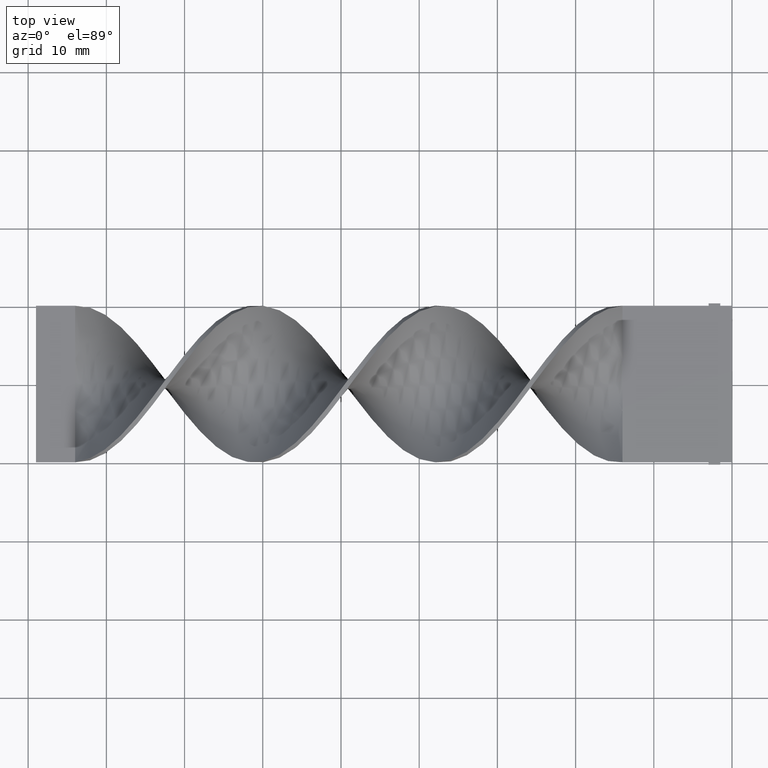
[diagram: clean part render]
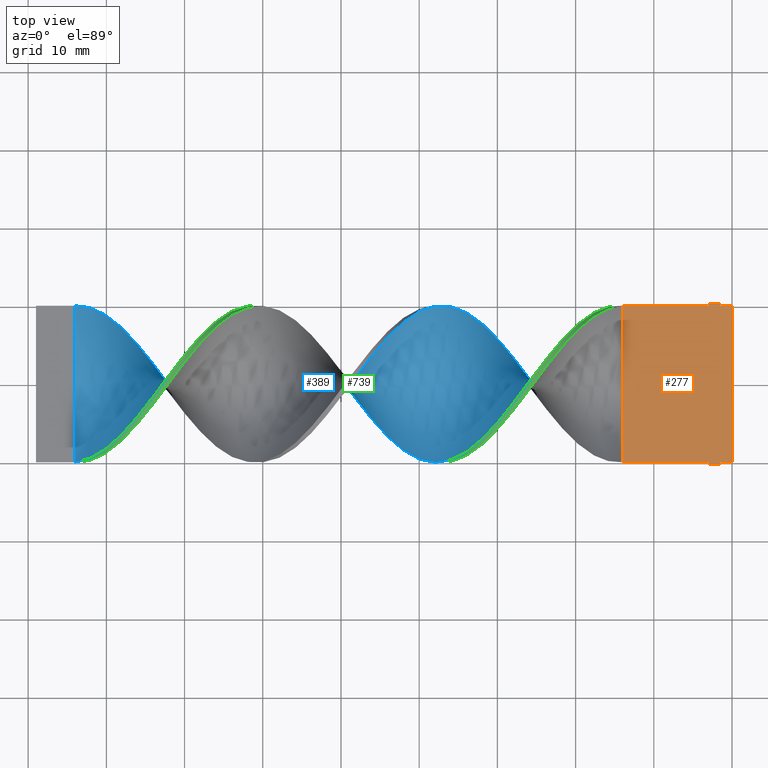
[diagram: same view with three faces highlighted in distinct colors, each labeled with its STEP entity id]
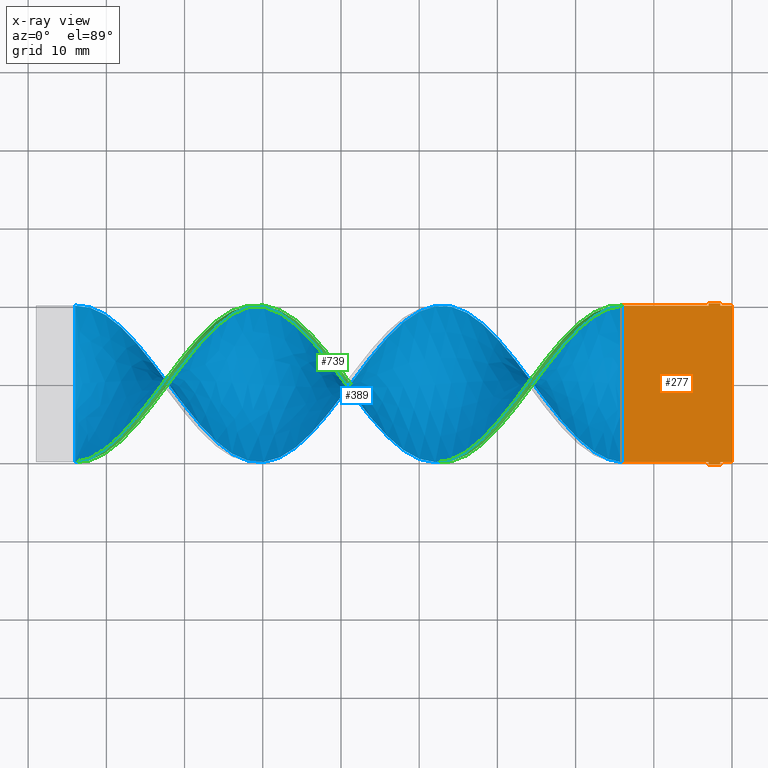
[diagram: x-ray of the same camera — body ghosted, the three highlighted faces saturated]
A machine part, top view with three faces highlighted in distinct colors.
The next image is the same camera in x-ray (body ghosted, the three faces saturated) — at least one of them is partly hidden behind the body in this view.
Their STEP definitions:

[orange] entity #277 — the highlighted planar face has unit normal (0, 0, 1).
#1 = LINE ( 'NONE', #616, #1038 ) ;
#6 = CARTESIAN_POINT ( 'NONE',  ( -2.999999999999995559, 10.30000000000000071, 0.5000000000000000000 ) ) ;
#21 = DIRECTION ( 'NONE',  ( -1.000000000000000000, 0.000000000000000000, 0.000000000000000000 ) ) ;
#36 = FACE_OUTER_BOUND ( 'NONE', #1523, .T. ) ;
#37 = CARTESIAN_POINT ( 'NONE',  ( -1.499999999999995781, 10.00000000000000000, 0.5000000000000000000 ) ) ;
#44 = EDGE_CURVE ( 'NONE', #51, #1324, #1, .T. ) ;
#51 = VERTEX_POINT ( 'NONE', #1122 ) ;
#105 = VERTEX_POINT ( 'NONE', #1514 ) ;
#149 = CARTESIAN_POINT ( 'NONE',  ( -1.499999999999993117, -10.30000000000000071, 0.5000000000000000000 ) ) ;
#150 = ORIENTED_EDGE ( 'NONE', *, *, #654, .T. ) ;
#189 = CARTESIAN_POINT ( 'NONE',  ( -13.99999999999999645, -10.00000000000000178, 0.5000000000000000000 ) ) ;
#216 = CARTESIAN_POINT ( 'NONE',  ( -2.999999999999993339, -10.00000000000000000, 0.5000000000000000000 ) ) ;
#235 = ORIENTED_EDGE ( 'NONE', *, *, #298, .T. ) ;
#270 = LINE ( 'NONE', #769, #656 ) ;
#277 = ADVANCED_FACE ( 'NONE', ( #36 ), #541, .T. ) ;
#280 = LINE ( 'NONE', #544, #495 ) ;
#293 = DIRECTION ( 'NONE',  ( 1.000000000000000000, 0.000000000000000000, -0.000000000000000000 ) ) ;
#298 = EDGE_CURVE ( 'NONE', #1507, #547, #408, .T. ) ;
#322 = DIRECTION ( 'NONE',  ( -1.000000000000000000, 0.000000000000000000, 0.000000000000000000 ) ) ;
#332 = CARTESIAN_POINT ( 'NONE',  ( -1.499999999999995781, 10.30000000000000071, 0.5000000000000000000 ) ) ;
#337 = LINE ( 'NONE', #216, #1388 ) ;
#338 = EDGE_CURVE ( 'NONE', #781, #1485, #280, .T. ) ;
#358 = EDGE_CURVE ( 'NONE', #547, #767, #1045, .T. ) ;
#394 = CARTESIAN_POINT ( 'NONE',  ( -2.999999999999993339, -10.00000000000000000, 0.5000000000000000000 ) ) ;
#408 = LINE ( 'NONE', #892, #1539 ) ;
#412 = EDGE_CURVE ( 'NONE', #904, #429, #1099, .T. ) ;
#427 = DIRECTION ( 'NONE',  ( -1.000000000000000000, -1.577021341797097067E-16, 0.000000000000000000 ) ) ;
#428 = DIRECTION ( 'NONE',  ( -1.224646799147353207E-16, 1.000000000000000000, 0.000000000000000000 ) ) ;
#429 = VERTEX_POINT ( 'NONE', #394 ) ;
#482 = VECTOR ( 'NONE', #1081, 1000.000000000000000 ) ;
#483 = EDGE_CURVE ( 'NONE', #946, #781, #270, .T. ) ;
#495 = VECTOR ( 'NONE', #427, 1000.000000000000000 ) ;
#530 = ORIENTED_EDGE ( 'NONE', *, *, #44, .F. ) ;
#541 = PLANE ( 'NONE',  #1200 ) ;
#544 = CARTESIAN_POINT ( 'NONE',  ( -2.999999999999995559, 10.00000000000000000, 0.5000000000000000000 ) ) ;
#547 = VERTEX_POINT ( 'NONE', #37 ) ;
#566 = CARTESIAN_POINT ( 'NONE',  ( -2.449293598294706513E-15, 10.00000000000000000, 0.5000000000000000000 ) ) ;
#570 = CARTESIAN_POINT ( 'NONE',  ( -1.499999999999995781, 10.00000000000000000, 0.5000000000000000000 ) ) ;
#578 = VECTOR ( 'NONE', #428, 1000.000000000000000 ) ;
#603 = ORIENTED_EDGE ( 'NONE', *, *, #358, .T. ) ;
#616 = CARTESIAN_POINT ( 'NONE',  ( 0.000000000000000000, -10.00000000000000000, 0.5000000000000000000 ) ) ;
#621 = DIRECTION ( 'NONE',  ( 7.228014483236698528E-16, -1.000000000000000000, 0.000000000000000000 ) ) ;
#625 = DIRECTION ( 'NONE',  ( -1.000000000000000000, 0.000000000000000000, 0.000000000000000000 ) ) ;
#654 = EDGE_CURVE ( 'NONE', #1485, #1500, #1602, .T. ) ;
#656 = VECTOR ( 'NONE', #1287, 1000.000000000000000 ) ;
#665 = CARTESIAN_POINT ( 'NONE',  ( 0.000000000000000000, -10.00000000000000000, 0.5000000000000000000 ) ) ;
#691 = EDGE_CURVE ( 'NONE', #429, #1500, #337, .T. ) ;
#711 = ORIENTED_EDGE ( 'NONE', *, *, #760, .T. ) ;
#713 = DIRECTION ( 'NONE',  ( -1.000000000000000000, -1.577021341797097067E-16, 0.000000000000000000 ) ) ;
#717 = ORIENTED_EDGE ( 'NONE', *, *, #412, .F. ) ;
#736 = LINE ( 'NONE', #1609, #782 ) ;
#738 = CARTESIAN_POINT ( 'NONE',  ( 0.000000000000000000, 0.000000000000000000, 0.5000000000000000000 ) ) ;
#760 = EDGE_CURVE ( 'NONE', #767, #946, #936, .T. ) ;
#767 = VERTEX_POINT ( 'NONE', #332 ) ;
#769 = CARTESIAN_POINT ( 'NONE',  ( -2.999999999999995559, 10.30000000000000071, 0.5000000000000000000 ) ) ;
#781 = VERTEX_POINT ( 'NONE', #829 ) ;
#782 = VECTOR ( 'NONE', #621, 1000.000000000000000 ) ;
#790 = CARTESIAN_POINT ( 'NONE',  ( -2.999999999999993339, -10.30000000000000071, 0.5000000000000000000 ) ) ;
#816 = DIRECTION ( 'NONE',  ( 0.000000000000000000, 1.000000000000000000, 0.000000000000000000 ) ) ;
#818 = CARTESIAN_POINT ( 'NONE',  ( -1.499999999999993339, -10.00000000000000000, 0.5000000000000000000 ) ) ;
#829 = CARTESIAN_POINT ( 'NONE',  ( -2.999999999999995559, 10.00000000000000000, 0.5000000000000000000 ) ) ;
#874 = EDGE_CURVE ( 'NONE', #51, #1507, #1402, .T. ) ;
#882 = VECTOR ( 'NONE', #322, 1000.000000000000000 ) ;
#892 = CARTESIAN_POINT ( 'NONE',  ( -2.449293598294706513E-15, 10.00000000000000000, 0.5000000000000000000 ) ) ;
#904 = VERTEX_POINT ( 'NONE', #790 ) ;
#935 = EDGE_CURVE ( 'NONE', #1324, #105, #736, .T. ) ;
#936 = LINE ( 'NONE', #1437, #882 ) ;
#946 = VERTEX_POINT ( 'NONE', #6 ) ;
#973 = ORIENTED_EDGE ( 'NONE', *, *, #1559, .F. ) ;
#1026 = DIRECTION ( 'NONE',  ( -1.000000000000000000, 0.000000000000000000, 0.000000000000000000 ) ) ;
#1038 = VECTOR ( 'NONE', #625, 1000.000000000000000 ) ;
#1040 = CARTESIAN_POINT ( 'NONE',  ( -13.99999999999999822, 9.999999999999998224, 0.5000000000000000000 ) ) ;
#1045 = LINE ( 'NONE', #570, #1257 ) ;
#1081 = DIRECTION ( 'NONE',  ( 8.673617379884035472E-17, -1.000000000000000000, 0.000000000000000000 ) ) ;
#1099 = LINE ( 'NONE', #1616, #1229 ) ;
#1122 = CARTESIAN_POINT ( 'NONE',  ( 0.000000000000000000, -10.00000000000000000, 0.5000000000000000000 ) ) ;
#1200 = AXIS2_PLACEMENT_3D ( 'NONE', #738, #1250, #293 ) ;
#1229 = VECTOR ( 'NONE', #1594, 1000.000000000000000 ) ;
#1235 = ORIENTED_EDGE ( 'NONE', *, *, #935, .F. ) ;
#1241 = VECTOR ( 'NONE', #21, 1000.000000000000000 ) ;
#1250 = DIRECTION ( 'NONE',  ( 0.000000000000000000, 0.000000000000000000, 1.000000000000000000 ) ) ;
#1255 = ORIENTED_EDGE ( 'NONE', *, *, #874, .T. ) ;
#1257 = VECTOR ( 'NONE', #816, 1000.000000000000000 ) ;
#1265 = LINE ( 'NONE', #149, #1241 ) ;
#1277 = ORIENTED_EDGE ( 'NONE', *, *, #338, .T. ) ;
#1287 = DIRECTION ( 'NONE',  ( 0.000000000000000000, -1.000000000000000000, 0.000000000000000000 ) ) ;
#1324 = VERTEX_POINT ( 'NONE', #818 ) ;
#1339 = CARTESIAN_POINT ( 'NONE',  ( -13.99999999999999822, 9.999999999999998224, 0.5000000000000000000 ) ) ;
#1388 = VECTOR ( 'NONE', #713, 1000.000000000000000 ) ;
#1402 = LINE ( 'NONE', #665, #578 ) ;
#1437 = CARTESIAN_POINT ( 'NONE',  ( -1.499999999999995781, 10.30000000000000071, 0.5000000000000000000 ) ) ;
#1467 = ORIENTED_EDGE ( 'NONE', *, *, #691, .F. ) ;
#1485 = VERTEX_POINT ( 'NONE', #1040 ) ;
#1500 = VERTEX_POINT ( 'NONE', #189 ) ;
#1507 = VERTEX_POINT ( 'NONE', #566 ) ;
#1512 = ORIENTED_EDGE ( 'NONE', *, *, #483, .T. ) ;
#1514 = CARTESIAN_POINT ( 'NONE',  ( -1.499999999999993117, -10.30000000000000071, 0.5000000000000000000 ) ) ;
#1523 = EDGE_LOOP ( 'NONE', ( #530, #1255, #235, #603, #711, #1512, #1277, #150, #1467, #717, #973, #1235 ) ) ;
#1539 = VECTOR ( 'NONE', #1026, 1000.000000000000000 ) ;
#1559 = EDGE_CURVE ( 'NONE', #105, #904, #1265, .T. ) ;
#1594 = DIRECTION ( 'NONE',  ( 0.000000000000000000, 1.000000000000000000, 0.000000000000000000 ) ) ;
#1602 = LINE ( 'NONE', #1339, #482 ) ;
#1609 = CARTESIAN_POINT ( 'NONE',  ( -1.499999999999993339, -10.00000000000000000, 0.5000000000000000000 ) ) ;
#1616 = CARTESIAN_POINT ( 'NONE',  ( -2.999999999999993339, -10.30000000000000071, 0.5000000000000000000 ) ) ;

[blue] entity #389 — the highlighted face is a freeform B-spline surface patch.
#5 = CARTESIAN_POINT ( 'NONE',  ( -34.64102564102564230, 9.597441021197465005, -3.101151636102500220 ) ) ;
#11 = CARTESIAN_POINT ( 'NONE',  ( -31.94871794871794535, 7.816668810831406411, -6.256971208322403832 ) ) ;
#15 = CARTESIAN_POINT ( 'NONE',  ( -32.84615384615384670, 8.576402663910496216, -5.307855779119662998 ) ) ;
#22 = CARTESIAN_POINT ( 'NONE',  ( -50.79487179487178850, -2.899770140771670945, 9.660194033048929541 ) ) ;
#29 = CARTESIAN_POINT ( 'NONE',  ( -60.66666666666666430, -10.00000000000000178, -0.5000000000000000000 ) ) ;
#35 = CARTESIAN_POINT ( 'NONE',  ( -54.38461538461538680, -7.056934957752314830, 7.206086637525145555 ) ) ;
#39 = CARTESIAN_POINT ( 'NONE',  ( -22.07692307692308376, -4.235384428724052519, -9.153662347191257709 ) ) ;
#41 = CARTESIAN_POINT ( 'NONE',  ( -69.64102564102564941, 4.013556991768064464, 9.172859983332880773 ) ) ;
#45 = CARTESIAN_POINT ( 'NONE',  ( -66.94871794871795601, -6.302926640005412473, -7.874079717413027701 ) ) ;
#55 = CARTESIAN_POINT ( 'NONE',  ( -58.87179487179486870, -9.829076006404299903, 1.907685734162560820 ) ) ;
#58 = CARTESIAN_POINT ( 'NONE',  ( -77.71794871794872961, -6.302926640005408920, 7.874079717413028590 ) ) ;
#60 = CARTESIAN_POINT ( 'NONE',  ( -83.10256410256410220, 10.06071099161113125, -0.7142198322226099849 ) ) ;
#61 = CARTESIAN_POINT ( 'NONE',  ( -79.51282051282051100, 8.576402663910496216, -5.307855779119662998 ) ) ;
#63 = LINE ( 'NONE', #690, #1208 ) ;
#74 = CARTESIAN_POINT ( 'NONE',  ( -13.99999999999999822, 9.999999999999998224, -0.5000000000000000000 ) ) ;
#78 = CARTESIAN_POINT ( 'NONE',  ( -17.58974358974358765, 9.086921842553980611, 4.204503707611079832 ) ) ;
#84 = CARTESIAN_POINT ( 'NONE',  ( -66.05128205128204399, 7.816668810831408187, 6.256971208322401168 ) ) ;
#93 = CARTESIAN_POINT ( 'NONE',  ( -51.69230769230769340, 3.078540749082647299, -9.527464870375414563 ) ) ;
#102 = CARTESIAN_POINT ( 'NONE',  ( -68.74358974358973740, 5.127343842764455317, 8.685525933616832006 ) ) ;
#111 = CARTESIAN_POINT ( 'NONE',  ( -55.28205128205128460, 7.153546152590608997, -7.005481956493506246 ) ) ;
#119 = CARTESIAN_POINT ( 'NONE',  ( -14.89743589743589602, 10.06071099161113125, 0.7142198322226054330 ) ) ;
#134 = CARTESIAN_POINT ( 'NONE',  ( -21.17948717948717885, -5.269155534364732496, -8.513871032302141373 ) ) ;
#137 = CARTESIAN_POINT ( 'NONE',  ( -24.76923076923076650, -0.7090123655042065431, -9.987357081108200418 ) ) ;
#142 = CARTESIAN_POINT ( 'NONE',  ( -84.00000000000000000, -10.00000000000000178, 0.5000000000000012212 ) ) ;
#143 = CARTESIAN_POINT ( 'NONE',  ( -44.51282051282051100, 5.269155534364730720, 8.513871032302141373 ) ) ;
#147 = CARTESIAN_POINT ( 'NONE',  ( -27.46153846153846345, 2.899770140771672278, -9.660194033048927764 ) ) ;
#151 = CARTESIAN_POINT ( 'NONE',  ( -48.10256410256410220, 0.7090123655042074313, 9.987357081108202195 ) ) ;
#153 = CARTESIAN_POINT ( 'NONE',  ( -36.43589743589743790, 10.06071099161113125, -0.7142198322226098739 ) ) ;
#159 = CARTESIAN_POINT ( 'NONE',  ( -40.92307692307691980, 8.622198670510211826, 5.089959733264289632 ) ) ;
#163 = CARTESIAN_POINT ( 'NONE',  ( -47.20512820512820440, 1.921697069441246963, 9.901267393559574970 ) ) ;
#166 = CARTESIAN_POINT ( 'NONE',  ( -55.28205128205128460, 7.153546152590608997, -7.005481956493506246 ) ) ;
#171 = CARTESIAN_POINT ( 'NONE',  ( -49.89743589743589069, -1.701721239602251634, 9.866820400852880368 ) ) ;
#173 = CARTESIAN_POINT ( 'NONE',  ( -66.94871794871794179, 7.056934957752320159, 7.206086637525141114 ) ) ;
#179 = CARTESIAN_POINT ( 'NONE',  ( -68.74358974358973740, 5.127343842764454429, 8.685525933616832006 ) ) ;
#184 = CARTESIAN_POINT ( 'NONE',  ( -57.97435897435897090, -9.597441021197468558, 3.101151636102501996 ) ) ;
#192 = CARTESIAN_POINT ( 'NONE',  ( -57.07692307692307310, -9.086921842553982387, 4.204503707611086938 ) ) ;
#197 = CARTESIAN_POINT ( 'NONE',  ( -83.10256410256410220, 10.06071099161113125, -0.7142198322226098739 ) ) ;
#213 = CARTESIAN_POINT ( 'NONE',  ( -31.05128205128205465, -6.302926640005408920, 7.874079717413029478 ) ) ;
#221 = CARTESIAN_POINT ( 'NONE',  ( -32.84615384615384670, -8.004165665175817068, 6.136884195573980350 ) ) ;
#222 = CARTESIAN_POINT ( 'NONE',  ( -59.76923076923076650, 9.939289008388868751, -1.714219832222610984 ) ) ;
#229 = CARTESIAN_POINT ( 'NONE',  ( -34.64102564102564230, -9.240231675844615467, 4.043035270954604243 ) ) ;
#240 = CARTESIAN_POINT ( 'NONE',  ( -63.35897435897436480, 9.597441021197466782, 3.101151636102497555 ) ) ;
#245 = CARTESIAN_POINT ( 'NONE',  ( -83.10256410256410220, -9.939289008388872304, 1.714219832222609874 ) ) ;
#254 = CARTESIAN_POINT ( 'NONE',  ( -45.41025641025640880, -5.127343842764459758, -8.685525933616828453 ) ) ;
#256 = CARTESIAN_POINT ( 'NONE',  ( -61.56410256410256920, -9.939289008388872304, -1.714219832222605433 ) ) ;
#260 = CARTESIAN_POINT ( 'NONE',  ( -49.00000000000000711, -0.5036723384328444242, -10.07344676865682764 ) ) ;
#264 = CARTESIAN_POINT ( 'NONE',  ( -37.33333333333332860, 9.999999999999998224, 0.4999999999999988343 ) ) ;
#266 = CARTESIAN_POINT ( 'NONE',  ( -38.23076923076922640, 9.939289008388868751, 1.714219832222602991 ) ) ;
#269 = CARTESIAN_POINT ( 'NONE',  ( -53.48717948717948900, -6.092139400258385074, 7.945806285570988337 ) ) ;
#272 = CARTESIAN_POINT ( 'NONE',  ( -35.53846153846153300, 9.829076006404296351, -1.907685734162555047 ) ) ;
#276 = CARTESIAN_POINT ( 'NONE',  ( -26.56410256410256210, 1.701721239602254521, -9.866820400852878592 ) ) ;
#279 = CARTESIAN_POINT ( 'NONE',  ( -15.79487179487179205, -9.589760342116742109, -2.878627551588603062 ) ) ;
#283 = CARTESIAN_POINT ( 'NONE',  ( -47.20512820512820440, 1.921697069441246963, 9.901267393559574970 ) ) ;
#290 = CARTESIAN_POINT ( 'NONE',  ( -72.33333333333332860, 0.5036723384328407604, 10.07344676865682764 ) ) ;
#295 = CARTESIAN_POINT ( 'NONE',  ( -66.05128205128204399, -7.153546152590615215, -7.005481956493501805 ) ) ;
#299 = CARTESIAN_POINT ( 'NONE',  ( -74.12820512820512420, -1.921697069441248962, 9.901267393559574970 ) ) ;
#303 = CARTESIAN_POINT ( 'NONE',  ( -72.33333333333332860, 0.5036723384328397612, -10.07344676865682942 ) ) ;
#307 = CARTESIAN_POINT ( 'NONE',  ( -67.84615384615385381, 6.092139400258386850, 7.945806285570984784 ) ) ;
#310 = CARTESIAN_POINT ( 'NONE',  ( -66.05128205128204399, -7.153546152590615215, -7.005481956493501805 ) ) ;
#318 = CARTESIAN_POINT ( 'NONE',  ( -84.00000000000000000, 9.999999999999998224, 0.4999999999999988343 ) ) ;
#326 = CARTESIAN_POINT ( 'NONE',  ( -61.56410256410256920, -9.939289008388872304, -1.714219832222605433 ) ) ;
#333 = CARTESIAN_POINT ( 'NONE',  ( -39.12820512820512420, -9.829076006404301680, -1.907685734162548385 ) ) ;
#341 = CARTESIAN_POINT ( 'NONE',  ( -40.02564102564102200, -9.597441021197472111, -3.101151636102494003 ) ) ;
#342 = CARTESIAN_POINT ( 'NONE',  ( -35.53846153846153300, -9.589760342116740333, 2.878627551588606615 ) ) ;
#349 = CARTESIAN_POINT ( 'NONE',  ( -15.79487179487179205, 9.829076006404298127, 1.907685734162551494 ) ) ;
#351 =( BOUNDED_SURFACE ( )  B_SPLINE_SURFACE ( 1, 2, ( 
 ( #1204, #1303, #1071, #940, #78, #562, #1053, #686, #1576, #1557, #464, #1546, #1092, #1344, #979, #1569, #1483, #1464, #458, #1327, #359, #221, #1226, #943, #583, #969, #701, #1598, #333, #341, #599, #1103, #1477, #750, #743, #254, #1264, #633, #1135, #260, #1010, #402, #1020, #887, #411, #1548, #166, #1306, #1157, #920, #1531, #1217, #417, #902, #1410, #667, #1165, #1425, #557, #173, #307, #179, #41, #810, #430, #290, #1175, #299, #800, #680, #1183, #58, #591, #1056, #926, #1112, #366, #245, #737 ),
 ( #764, #515, #279, #1034, #1282, #999, #425, #1141, #899, #39, #396, #880, #137, #1503, #1163, #147, #1521, #671, #1390, #1401, #1170, #15, #387, #543, #272, #153, #871, #266, #653, #1382, #1005, #1153, #1025, #1528, #415, #778, #1290, #163, #664, #1538, #171, #910, #684, #560, #918, #923, #1196, #1051, #192, #184, #55, #1044, #1563, #326, #823, #555, #1320, #1449, #295, #1551, #808, #1188, #787, #804, #552, #1041, #1060, #1186, #1194, #567, #1571, #450, #433, #61, #460, #819, #945, #197, #916 ) ),
 .UNSPECIFIED., .F., .F., .F. ) 
 B_SPLINE_SURFACE_WITH_KNOTS ( ( 2, 2 ),
 ( 3, 2, 2, 2, 2, 2, 2, 2, 2, 2, 2, 2, 2, 2, 2, 2, 2, 2, 2, 2, 2, 2, 2, 2, 2, 2, 2, 2, 2, 2, 2, 2, 2, 2, 2, 2, 2, 2, 2, 3 ),
 ( 0.000000000000000000, 1.000000000000000000 ),
 ( 0.000000000000000000, 0.01923076923076923184, 0.03846153846153846367, 0.05769230769230769551, 0.07692307692307692735, 0.09615384615384615918, 0.1153846153846153910, 0.1346153846153846090, 0.1538461538461538547, 0.1730769230769230727, 0.1923076923076923184, 0.2115384615384615363, 0.2307692307692307820, 0.2500000000000000000, 0.2692307692307692180, 0.2884615384615384359, 0.3076923076923077094, 0.3269230769230769273, 0.3461538461538461453, 0.3653846153846153633, 0.3846153846153846367, 0.4038461538461538547, 0.4230769230769230727, 0.4423076923076922906, 0.4615384615384615641, 0.4807692307692307820, 0.5000000000000000000, 0.5192307692307692735, 0.5384615384615384359, 0.5576923076923077094, 0.5769230769230768718, 0.5961538461538461453, 0.6153846153846154188, 0.6346153846153845812, 0.6538461538461538547, 0.6730769230769231282, 0.6923076923076922906, 0.7115384615384615641, 0.7307692307692307265, 0.7500000000000000000 ),
 .UNSPECIFIED. ) 
 GEOMETRIC_REPRESENTATION_ITEM ( )  RATIONAL_B_SPLINE_SURFACE ( (
 ( 1.000000000000000000, 0.9927088740980539727, 1.000000000000000000, 0.9927088740980539727, 1.000000000000000000, 0.9927088740980539727, 1.000000000000000000, 0.9927088740980539727, 1.000000000000000000, 0.9927088740980539727, 1.000000000000000000, 0.9927088740980539727, 1.000000000000000000, 0.9927088740980539727, 1.000000000000000000, 0.9927088740980539727, 1.000000000000000000, 0.9927088740980539727, 1.000000000000000000, 0.9927088740980539727, 1.000000000000000000, 0.9927088740980539727, 1.000000000000000000, 0.9927088740980539727, 1.000000000000000000, 0.9927088740980539727, 1.000000000000000000, 0.9927088740980539727, 1.000000000000000000, 0.9927088740980539727, 1.000000000000000000, 0.9927088740980539727, 1.000000000000000000, 0.9927088740980539727, 1.000000000000000000, 0.9927088740980539727, 1.000000000000000000, 0.9927088740980539727, 1.000000000000000000, 0.9927088740980539727, 1.000000000000000000, 0.9927088740980539727, 1.000000000000000000, 0.9927088740980539727, 1.000000000000000000, 0.9927088740980539727, 1.000000000000000000, 0.9927088740980539727, 1.000000000000000000, 0.9927088740980539727, 1.000000000000000000, 0.9927088740980539727, 1.000000000000000000, 0.9927088740980539727, 1.000000000000000000, 0.9927088740980539727, 1.000000000000000000, 0.9927088740980539727, 1.000000000000000000, 0.9927088740980539727, 1.000000000000000000, 0.9927088740980539727, 1.000000000000000000, 0.9927088740980539727, 1.000000000000000000, 0.9927088740980539727, 1.000000000000000000, 0.9927088740980539727, 1.000000000000000000, 0.9927088740980539727, 1.000000000000000000, 0.9927088740980539727, 1.000000000000000000, 0.9927088740980539727, 1.000000000000000000, 0.9927088740980539727, 1.000000000000000000, 0.9927088740980539727, 1.000000000000000000),
 ( 1.000000000000000000, 0.9927088740980539727, 1.000000000000000000, 0.9927088740980539727, 1.000000000000000000, 0.9927088740980539727, 1.000000000000000000, 0.9927088740980539727, 1.000000000000000000, 0.9927088740980539727, 1.000000000000000000, 0.9927088740980539727, 1.000000000000000000, 0.9927088740980539727, 1.000000000000000000, 0.9927088740980539727, 1.000000000000000000, 0.9927088740980539727, 1.000000000000000000, 0.9927088740980539727, 1.000000000000000000, 0.9927088740980539727, 1.000000000000000000, 0.9927088740980539727, 1.000000000000000000, 0.9927088740980539727, 1.000000000000000000, 0.9927088740980539727, 1.000000000000000000, 0.9927088740980539727, 1.000000000000000000, 0.9927088740980539727, 1.000000000000000000, 0.9927088740980539727, 1.000000000000000000, 0.9927088740980539727, 1.000000000000000000, 0.9927088740980539727, 1.000000000000000000, 0.9927088740980539727, 1.000000000000000000, 0.9927088740980539727, 1.000000000000000000, 0.9927088740980539727, 1.000000000000000000, 0.9927088740980539727, 1.000000000000000000, 0.9927088740980539727, 1.000000000000000000, 0.9927088740980539727, 1.000000000000000000, 0.9927088740980539727, 1.000000000000000000, 0.9927088740980539727, 1.000000000000000000, 0.9927088740980539727, 1.000000000000000000, 0.9927088740980539727, 1.000000000000000000, 0.9927088740980539727, 1.000000000000000000, 0.9927088740980539727, 1.000000000000000000, 0.9927088740980539727, 1.000000000000000000, 0.9927088740980539727, 1.000000000000000000, 0.9927088740980539727, 1.000000000000000000, 0.9927088740980539727, 1.000000000000000000, 0.9927088740980539727, 1.000000000000000000, 0.9927088740980539727, 1.000000000000000000, 0.9927088740980539727, 1.000000000000000000, 0.9927088740980539727, 1.000000000000000000) ) ) 
 REPRESENTATION_ITEM ( '' )  SURFACE ( )  );
#359 = CARTESIAN_POINT ( 'NONE',  ( -31.94871794871794535, -7.153546152590612550, 7.005481956493504470 ) ) ;
#360 = CARTESIAN_POINT ( 'NONE',  ( -13.99999999999999822, 9.999999999999998224, -0.5000000000000000000 ) ) ;
#366 = CARTESIAN_POINT ( 'NONE',  ( -82.20512820512820440, -9.589760342116740333, 2.878627551588606615 ) ) ;
#368 = CARTESIAN_POINT ( 'NONE',  ( -41.82051282051281760, -8.576402663910501545, -5.307855779119661221 ) ) ;
#377 = CARTESIAN_POINT ( 'NONE',  ( -37.33333333333332860, -10.00000000000000178, 0.5000000000000012212 ) ) ;
#382 = CARTESIAN_POINT ( 'NONE',  ( -73.23076923076924061, -0.7090123655042029904, 9.987357081108200418 ) ) ;
#384 = CARTESIAN_POINT ( 'NONE',  ( -17.58974358974358765, -8.622198670510215379, -5.089959733264290520 ) ) ;
#387 = CARTESIAN_POINT ( 'NONE',  ( -33.74358974358974450, 9.086921842553980611, -4.204503707611081609 ) ) ;
#389 = ADVANCED_FACE ( 'NONE', ( #697 ), #351, .T. ) ;
#393 = CARTESIAN_POINT ( 'NONE',  ( -31.05128205128205465, 7.056934957752318383, -7.206086637525142891 ) ) ;
#396 = CARTESIAN_POINT ( 'NONE',  ( -22.97435897435897090, -3.078540749082652184, -9.527464870375414563 ) ) ;
#402 = CARTESIAN_POINT ( 'NONE',  ( -50.79487179487178850, 1.921697069441242967, -9.901267393559576746 ) ) ;
#403 = CARTESIAN_POINT ( 'NONE',  ( -71.43589743589743080, 1.701721239602258073, 9.866820400852878592 ) ) ;
#404 = B_SPLINE_CURVE_WITH_KNOTS ( 'NONE', 3,
 ( #559, #1328, #436, #1309 ),
 .UNSPECIFIED., .F., .F.,
 ( 4, 4 ),
 ( 0.000000000000000000, 1.000000000000000000 ),
 .UNSPECIFIED. ) ;
#406 = CARTESIAN_POINT ( 'NONE',  ( -23.87179487179487580, -1.921697069441250516, -9.901267393559574970 ) ) ;
#411 = CARTESIAN_POINT ( 'NONE',  ( -53.48717948717948900, 5.269155534364727167, -8.513871032302144926 ) ) ;
#413 = CARTESIAN_POINT ( 'NONE',  ( -41.82051282051281760, 8.004165665175815292, 6.136884195573978573 ) ) ;
#415 = CARTESIAN_POINT ( 'NONE',  ( -44.51282051282051100, 5.269155534364730720, 8.513871032302141373 ) ) ;
#417 = CARTESIAN_POINT ( 'NONE',  ( -60.66666666666666430, 9.999999999999998224, -0.5000000000000000000 ) ) ;
#419 = CARTESIAN_POINT ( 'NONE',  ( -39.12820512820512420, 9.589760342116742109, 2.878627551588600397 ) ) ;
#425 = CARTESIAN_POINT ( 'NONE',  ( -19.38461538461538325, -7.153546152590615215, -7.005481956493501805 ) ) ;
#430 = CARTESIAN_POINT ( 'NONE',  ( -71.43589743589743080, 1.701721239602258073, 9.866820400852878592 ) ) ;
#432 = CARTESIAN_POINT ( 'NONE',  ( -70.53846153846153300, -1.921697069441250516, -9.901267393559574970 ) ) ;
#433 = CARTESIAN_POINT ( 'NONE',  ( -78.61538461538461320, 7.816668810831406411, -6.256971208322403832 ) ) ;
#436 = CARTESIAN_POINT ( 'NONE',  ( -84.00000000000000000, 3.333333333333332149, 0.4999999999999995559 ) ) ;
#449 = CARTESIAN_POINT ( 'NONE',  ( -73.23076923076924061, 1.701721239602254521, -9.866820400852878592 ) ) ;
#450 = CARTESIAN_POINT ( 'NONE',  ( -77.71794871794872961, 7.056934957752318383, -7.206086637525142891 ) ) ;
#452 = CARTESIAN_POINT ( 'NONE',  ( -84.00000000000000000, -10.00000000000000178, 0.5000000000000012212 ) ) ;
#458 = CARTESIAN_POINT ( 'NONE',  ( -30.15384615384615330, -5.269155534364729832, 8.513871032302143149 ) ) ;
#459 = CARTESIAN_POINT ( 'NONE',  ( -75.02564102564102200, 4.013556991768060911, -9.172859983332880773 ) ) ;
#460 = CARTESIAN_POINT ( 'NONE',  ( -80.41025641025640880, 9.086921842553980611, -4.204503707611081609 ) ) ;
#464 = CARTESIAN_POINT ( 'NONE',  ( -22.97435897435897090, 4.013556991768064464, 9.172859983332880773 ) ) ;
#469 = CARTESIAN_POINT ( 'NONE',  ( -20.28205128205128460, 7.056934957752320159, 7.206086637525141114 ) ) ;
#475 = CARTESIAN_POINT ( 'NONE',  ( -40.92307692307691980, -9.086921842553984163, -4.204503707611078944 ) ) ;
#486 = CARTESIAN_POINT ( 'NONE',  ( -65.15384615384614619, 8.576402663910497992, 5.307855779119662110 ) ) ;
#492 = CARTESIAN_POINT ( 'NONE',  ( -56.17948717948717530, 8.004165665175813515, -6.136884195573983014 ) ) ;
#499 = CARTESIAN_POINT ( 'NONE',  ( -62.46153846153845990, 9.829076006404298127, 1.907685734162551494 ) ) ;
#506 = CARTESIAN_POINT ( 'NONE',  ( -38.23076923076922640, 9.939289008388868751, 1.714219832222602991 ) ) ;
#513 = CARTESIAN_POINT ( 'NONE',  ( -25.66666666666666785, 0.5036723384328397612, -10.07344676865682942 ) ) ;
#515 = CARTESIAN_POINT ( 'NONE',  ( -14.89743589743589602, -9.939289008388872304, -1.714219832222605433 ) ) ;
#526 = EDGE_LOOP ( 'NONE', ( #912, #1220, #791, #745 ) ) ;
#529 = CARTESIAN_POINT ( 'NONE',  ( -77.71794871794874382, -6.302926640005408920, 7.874079717413029478 ) ) ;
#533 = CARTESIAN_POINT ( 'NONE',  ( -40.02564102564102200, 9.240231675844615467, 4.043035270954598914 ) ) ;
#537 = CARTESIAN_POINT ( 'NONE',  ( -76.82051282051281760, -5.269155534364729832, 8.513871032302143149 ) ) ;
#540 = CARTESIAN_POINT ( 'NONE',  ( -16.69230769230769340, -9.240231675844617243, -4.043035270954601579 ) ) ;
#543 = CARTESIAN_POINT ( 'NONE',  ( -34.64102564102564230, 9.597441021197465005, -3.101151636102500664 ) ) ;
#552 = CARTESIAN_POINT ( 'NONE',  ( -71.43589743589743080, -0.7090123655042065431, -9.987357081108200418 ) ) ;
#555 = CARTESIAN_POINT ( 'NONE',  ( -63.35897435897435770, -9.240231675844619019, -4.043035270954601579 ) ) ;
#557 = CARTESIAN_POINT ( 'NONE',  ( -66.05128205128204399, 7.816668810831408187, 6.256971208322401168 ) ) ;
#559 = CARTESIAN_POINT ( 'NONE',  ( -84.00000000000000000, -10.00000000000000178, 0.5000000000000012212 ) ) ;
#560 = CARTESIAN_POINT ( 'NONE',  ( -52.58974358974358410, -5.127343842764450876, 8.685525933616833782 ) ) ;
#562 = CARTESIAN_POINT ( 'NONE',  ( -18.48717948717948545, 8.576402663910497992, 5.307855779119662110 ) ) ;
#564 = VERTEX_POINT ( 'NONE', #318 ) ;
#567 = CARTESIAN_POINT ( 'NONE',  ( -75.92307692307693401, 5.127343842764453541, -8.685525933616832006 ) ) ;
#583 = CARTESIAN_POINT ( 'NONE',  ( -35.53846153846153300, -9.589760342116740333, 2.878627551588606615 ) ) ;
#584 = CARTESIAN_POINT ( 'NONE',  ( -67.84615384615385381, 6.092139400258386850, 7.945806285570984784 ) ) ;
#588 = VERTEX_POINT ( 'NONE', #452 ) ;
#591 = CARTESIAN_POINT ( 'NONE',  ( -78.61538461538461320, -7.153546152590612550, 7.005481956493504470 ) ) ;
#593 = CARTESIAN_POINT ( 'NONE',  ( -31.94871794871794535, -7.153546152590612550, 7.005481956493504470 ) ) ;
#599 = CARTESIAN_POINT ( 'NONE',  ( -40.92307692307691980, -9.086921842553984163, -4.204503707611078944 ) ) ;
#600 = CARTESIAN_POINT ( 'NONE',  ( -69.64102564102564941, 4.013556991768064464, 9.172859983332880773 ) ) ;
#610 = CARTESIAN_POINT ( 'NONE',  ( -19.38461538461538325, 7.816668810831408187, 6.256971208322401168 ) ) ;
#618 = CARTESIAN_POINT ( 'NONE',  ( -47.20512820512820440, -2.899770140771674942, -9.660194033048927764 ) ) ;
#633 = CARTESIAN_POINT ( 'NONE',  ( -47.20512820512820440, -2.899770140771674942, -9.660194033048927764 ) ) ;
#635 = CARTESIAN_POINT ( 'NONE',  ( -27.46153846153846345, 2.899770140771671834, -9.660194033048927764 ) ) ;
#641 = CARTESIAN_POINT ( 'NONE',  ( -49.89743589743589069, -1.701721239602251634, 9.866820400852880368 ) ) ;
#650 = CARTESIAN_POINT ( 'NONE',  ( -15.79487179487179205, -9.589760342116742109, -2.878627551588603062 ) ) ;
#653 = CARTESIAN_POINT ( 'NONE',  ( -39.12820512820512420, 9.589760342116742109, 2.878627551588600397 ) ) ;
#660 = CARTESIAN_POINT ( 'NONE',  ( -20.28205128205128460, -6.302926640005412473, -7.874079717413027701 ) ) ;
#664 = CARTESIAN_POINT ( 'NONE',  ( -48.10256410256410220, 0.7090123655042074313, 9.987357081108202195 ) ) ;
#667 = CARTESIAN_POINT ( 'NONE',  ( -63.35897435897435770, 9.597441021197466782, 3.101151636102497555 ) ) ;
#669 = CARTESIAN_POINT ( 'NONE',  ( -58.87179487179486870, -9.829076006404299903, 1.907685734162560820 ) ) ;
#671 = CARTESIAN_POINT ( 'NONE',  ( -29.25641025641025905, 5.127343842764453541, -8.685525933616832006 ) ) ;
#680 = CARTESIAN_POINT ( 'NONE',  ( -75.92307692307693401, -4.235384428724051631, 9.153662347191257709 ) ) ;
#684 = CARTESIAN_POINT ( 'NONE',  ( -51.69230769230769340, -4.013556991768065352, 9.172859983332880773 ) ) ;
#686 = CARTESIAN_POINT ( 'NONE',  ( -20.28205128205128460, 7.056934957752320159, 7.206086637525141114 ) ) ;
#689 = CARTESIAN_POINT ( 'NONE',  ( -81.30769230769232081, 9.597441021197465005, -3.101151636102500220 ) ) ;
#690 = CARTESIAN_POINT ( 'NONE',  ( -13.99999999999999822, 9.999999999999998224, -0.5000000000000000000 ) ) ;
#697 = FACE_OUTER_BOUND ( 'NONE', #526, .T. ) ;
#701 = CARTESIAN_POINT ( 'NONE',  ( -37.33333333333332860, -10.00000000000000178, 0.5000000000000012212 ) ) ;
#702 = CARTESIAN_POINT ( 'NONE',  ( -26.56410256410256210, -0.7090123655042029904, 9.987357081108200418 ) ) ;
#710 = CARTESIAN_POINT ( 'NONE',  ( -36.43589743589743790, -9.939289008388872304, 1.714219832222609874 ) ) ;
#716 = CARTESIAN_POINT ( 'NONE',  ( -40.02564102564102200, -9.597441021197472111, -3.101151636102494003 ) ) ;
#725 = CARTESIAN_POINT ( 'NONE',  ( -45.41025641025640880, -5.127343842764459758, -8.685525933616828453 ) ) ;
#732 = CARTESIAN_POINT ( 'NONE',  ( -42.71794871794872250, -7.816668810831410852, -6.256971208322399391 ) ) ;
#737 = CARTESIAN_POINT ( 'NONE',  ( -84.00000000000000000, -10.00000000000000178, 0.5000000000000012212 ) ) ;
#743 = CARTESIAN_POINT ( 'NONE',  ( -44.51282051282051100, -6.092139400258388626, -7.945806285570984784 ) ) ;
#745 = ORIENTED_EDGE ( 'NONE', *, *, #1544, .F. ) ;
#750 = CARTESIAN_POINT ( 'NONE',  ( -43.61538461538461320, -7.056934957752322823, -7.206086637525138450 ) ) ;
#752 = CARTESIAN_POINT ( 'NONE',  ( -64.25641025641024839, -8.622198670510215379, -5.089959733264290520 ) ) ;
#758 = CARTESIAN_POINT ( 'NONE',  ( -79.51282051282051100, -8.004165665175817068, 6.136884195573980350 ) ) ;
#764 = CARTESIAN_POINT ( 'NONE',  ( -13.99999999999999822, -10.00000000000000178, -0.5000000000000000000 ) ) ;
#768 = CARTESIAN_POINT ( 'NONE',  ( -62.46153846153845990, -9.589760342116742109, -2.878627551588603062 ) ) ;
#775 = CARTESIAN_POINT ( 'NONE',  ( -36.43589743589743790, 10.06071099161113125, -0.7142198322226099849 ) ) ;
#778 = CARTESIAN_POINT ( 'NONE',  ( -45.41025641025640880, 4.235384428724056072, 9.153662347191254156 ) ) ;
#786 = CARTESIAN_POINT ( 'NONE',  ( -56.17948717948717530, -8.576402663910499768, 5.307855779119664774 ) ) ;
#787 = CARTESIAN_POINT ( 'NONE',  ( -69.64102564102564941, -3.078540749082652184, -9.527464870375414563 ) ) ;
#791 = ORIENTED_EDGE ( 'NONE', *, *, #1439, .F. ) ;
#795 = CARTESIAN_POINT ( 'NONE',  ( -71.43589743589743080, -0.7090123655042065431, -9.987357081108200418 ) ) ;
#800 = CARTESIAN_POINT ( 'NONE',  ( -75.02564102564102200, -3.078540749082648631, 9.527464870375414563 ) ) ;
#804 = CARTESIAN_POINT ( 'NONE',  ( -70.53846153846153300, -1.921697069441250294, -9.901267393559574970 ) ) ;
#805 =( BOUNDED_CURVE ( )  B_SPLINE_CURVE ( 2, ( #360, #119, #349, #970, #851, #1219, #610, #469, #1478, #952, #1612, #1455, #1335, #1578, #702, #1093, #1353, #1484, #1104, #213, #593, #1362, #988, #229, #342, #710, #377, #1345, #1599, #716, #475, #368, #732, #1491, #1116, #725, #1607, #618, #1237, #862, #960, #1588, #93, #1465, #1370, #1124, #111, #492, #1227, #838, #842, #222, #980, #855, #499, #240, #1209, #486, #84, #1247, #584, #102, #600, #1085, #403, #1276, #382, #1377, #1506, #1148, #537, #529, #876, #758, #1130, #1136, #1395, #1028, #142 ),
 .UNSPECIFIED., .F., .T. ) 
 B_SPLINE_CURVE_WITH_KNOTS ( ( 3, 2, 2, 2, 2, 2, 2, 2, 2, 2, 2, 2, 2, 2, 2, 2, 2, 2, 2, 2, 2, 2, 2, 2, 2, 2, 2, 2, 2, 2, 2, 2, 2, 2, 2, 2, 2, 2, 2, 3 ),
 ( 0.000000000000000000, 0.01923076923076923184, 0.03846153846153846367, 0.05769230769230768857, 0.07692307692307692735, 0.09615384615384615918, 0.1153846153846153771, 0.1346153846153846090, 0.1538461538461538547, 0.1730769230769230449, 0.1923076923076923184, 0.2115384615384615363, 0.2307692307692307543, 0.2500000000000000000, 0.2692307692307692180, 0.2884615384615384359, 0.3076923076923077094, 0.3269230769230769273, 0.3461538461538460898, 0.3653846153846153633, 0.3846153846153846367, 0.4038461538461539102, 0.4230769230769230727, 0.4423076923076922906, 0.4615384615384615086, 0.4807692307692307820, 0.5000000000000000000, 0.5192307692307692735, 0.5384615384615384359, 0.5576923076923077094, 0.5769230769230768718, 0.5961538461538461453, 0.6153846153846154188, 0.6346153846153845812, 0.6538461538461538547, 0.6730769230769230171, 0.6923076923076921796, 0.7115384615384615641, 0.7307692307692307265, 0.7500000000000000000 ),
 .UNSPECIFIED. ) 
 CURVE ( )  GEOMETRIC_REPRESENTATION_ITEM ( )  RATIONAL_B_SPLINE_CURVE ( ( 1.000000000000000000, 0.9927088740980539727, 1.000000000000000000, 0.9927088740980539727, 1.000000000000000000, 0.9927088740980539727, 1.000000000000000000, 0.9927088740980539727, 1.000000000000000000, 0.9927088740980539727, 1.000000000000000000, 0.9927088740980539727, 1.000000000000000000, 0.9927088740980539727, 1.000000000000000000, 0.9927088740980539727, 1.000000000000000000, 0.9927088740980539727, 1.000000000000000000, 0.9927088740980539727, 1.000000000000000000, 0.9927088740980539727, 1.000000000000000000, 0.9927088740980539727, 1.000000000000000000, 0.9927088740980539727, 1.000000000000000000, 0.9927088740980539727, 1.000000000000000000, 0.9927088740980539727, 1.000000000000000000, 0.9927088740980539727, 1.000000000000000000, 0.9927088740980539727, 1.000000000000000000, 0.9927088740980539727, 1.000000000000000000, 0.9927088740980539727, 1.000000000000000000, 0.9927088740980539727, 1.000000000000000000, 0.9927088740980539727, 1.000000000000000000, 0.9927088740980539727, 1.000000000000000000, 0.9927088740980539727, 1.000000000000000000, 0.9927088740980539727, 1.000000000000000000, 0.9927088740980539727, 1.000000000000000000, 0.9927088740980539727, 1.000000000000000000, 0.9927088740980539727, 1.000000000000000000, 0.9927088740980539727, 1.000000000000000000, 0.9927088740980539727, 1.000000000000000000, 0.9927088740980539727, 1.000000000000000000, 0.9927088740980539727, 1.000000000000000000, 0.9927088740980539727, 1.000000000000000000, 0.9927088740980539727, 1.000000000000000000, 0.9927088740980539727, 1.000000000000000000, 0.9927088740980539727, 1.000000000000000000, 0.9927088740980539727, 1.000000000000000000, 0.9927088740980539727, 1.000000000000000000, 0.9927088740980539727, 1.000000000000000000, 0.9927088740980539727, 1.000000000000000000 ) ) 
 REPRESENTATION_ITEM ( '' )  );
#808 = CARTESIAN_POINT ( 'NONE',  ( -67.84615384615385381, -5.269155534364732496, -8.513871032302141373 ) ) ;
#810 = CARTESIAN_POINT ( 'NONE',  ( -70.53846153846153300, 2.899770140771673166, 9.660194033048927764 ) ) ;
#813 = CARTESIAN_POINT ( 'NONE',  ( -75.92307692307691980, 5.127343842764453541, -8.685525933616832006 ) ) ;
#819 = CARTESIAN_POINT ( 'NONE',  ( -81.30769230769233502, 9.597441021197465005, -3.101151636102500664 ) ) ;
#823 = CARTESIAN_POINT ( 'NONE',  ( -62.46153846153845990, -9.589760342116742109, -2.878627551588603062 ) ) ;
#837 = VERTEX_POINT ( 'NONE', #74 ) ;
#838 = CARTESIAN_POINT ( 'NONE',  ( -57.97435897435897090, 9.240231675844611914, -4.043035270954605132 ) ) ;
#842 = CARTESIAN_POINT ( 'NONE',  ( -58.87179487179486870, 9.589760342116736780, -2.878627551588612388 ) ) ;
#851 = CARTESIAN_POINT ( 'NONE',  ( -17.58974358974358765, 9.086921842553980611, 4.204503707611079832 ) ) ;
#855 = CARTESIAN_POINT ( 'NONE',  ( -61.56410256410256920, 10.06071099161113125, 0.7142198322226054330 ) ) ;
#862 = CARTESIAN_POINT ( 'NONE',  ( -49.00000000000000000, -0.5036723384328445352, -10.07344676865682942 ) ) ;
#869 = CARTESIAN_POINT ( 'NONE',  ( -24.76923076923076650, -0.7090123655042065431, -9.987357081108200418 ) ) ;
#871 = CARTESIAN_POINT ( 'NONE',  ( -37.33333333333332860, 9.999999999999998224, 0.4999999999999988343 ) ) ;
#876 = CARTESIAN_POINT ( 'NONE',  ( -78.61538461538461320, -7.153546152590612550, 7.005481956493504470 ) ) ;
#880 = CARTESIAN_POINT ( 'NONE',  ( -23.87179487179487580, -1.921697069441250294, -9.901267393559574970 ) ) ;
#887 = CARTESIAN_POINT ( 'NONE',  ( -52.58974358974358410, 4.235384428724042749, -9.153662347191259485 ) ) ;
#889 = CARTESIAN_POINT ( 'NONE',  ( -51.69230769230769340, -4.013556991768065352, 9.172859983332880773 ) ) ;
#896 = CARTESIAN_POINT ( 'NONE',  ( -13.99999999999999645, -10.00000000000000178, -0.5000000000000000000 ) ) ;
#899 = CARTESIAN_POINT ( 'NONE',  ( -21.17948717948717885, -5.269155534364732496, -8.513871032302141373 ) ) ;
#902 = CARTESIAN_POINT ( 'NONE',  ( -61.56410256410256920, 10.06071099161113125, 0.7142198322226053220 ) ) ;
#907 = CARTESIAN_POINT ( 'NONE',  ( -18.48717948717948545, -8.004165665175818845, -6.136884195573979461 ) ) ;
#910 = CARTESIAN_POINT ( 'NONE',  ( -50.79487179487178850, -2.899770140771671390, 9.660194033048929541 ) ) ;
#912 = ORIENTED_EDGE ( 'NONE', *, *, #1156, .T. ) ;
#916 = CARTESIAN_POINT ( 'NONE',  ( -84.00000000000000000, 9.999999999999998224, 0.4999999999999988343 ) ) ;
#918 = CARTESIAN_POINT ( 'NONE',  ( -53.48717948717948900, -6.092139400258385074, 7.945806285570988337 ) ) ;
#920 = CARTESIAN_POINT ( 'NONE',  ( -57.97435897435897090, 9.240231675844613690, -4.043035270954606020 ) ) ;
#923 = CARTESIAN_POINT ( 'NONE',  ( -54.38461538461538680, -7.056934957752315718, 7.206086637525145555 ) ) ;
#926 = CARTESIAN_POINT ( 'NONE',  ( -80.41025641025640880, -8.622198670510215379, 5.089959733264292296 ) ) ;
#930 = CARTESIAN_POINT ( 'NONE',  ( -77.71794871794874382, 7.056934957752318383, -7.206086637525142891 ) ) ;
#937 = CARTESIAN_POINT ( 'NONE',  ( -80.41025641025640880, 9.086921842553980611, -4.204503707611081609 ) ) ;
#940 = CARTESIAN_POINT ( 'NONE',  ( -16.69230769230769695, 9.597441021197466782, 3.101151636102497555 ) ) ;
#943 = CARTESIAN_POINT ( 'NONE',  ( -34.64102564102564230, -9.240231675844617243, 4.043035270954605132 ) ) ;
#944 = CARTESIAN_POINT ( 'NONE',  ( -76.82051282051281760, 6.092139400258384185, -7.945806285570986560 ) ) ;
#945 = CARTESIAN_POINT ( 'NONE',  ( -82.20512820512820440, 9.829076006404296351, -1.907685734162555047 ) ) ;
#952 = CARTESIAN_POINT ( 'NONE',  ( -22.07692307692308020, 5.127343842764455317, 8.685525933616832006 ) ) ;
#960 = CARTESIAN_POINT ( 'NONE',  ( -49.89743589743589069, 0.7090123655041949968, -9.987357081108202195 ) ) ;
#969 = CARTESIAN_POINT ( 'NONE',  ( -36.43589743589743790, -9.939289008388872304, 1.714219832222609874 ) ) ;
#970 = CARTESIAN_POINT ( 'NONE',  ( -16.69230769230769340, 9.597441021197466782, 3.101151636102497555 ) ) ;
#979 = CARTESIAN_POINT ( 'NONE',  ( -26.56410256410256210, -0.7090123655042029904, 9.987357081108200418 ) ) ;
#980 = CARTESIAN_POINT ( 'NONE',  ( -60.66666666666666430, 9.999999999999998224, -0.5000000000000000000 ) ) ;
#988 = CARTESIAN_POINT ( 'NONE',  ( -33.74358974358974450, -8.622198670510215379, 5.089959733264292296 ) ) ;
#996 = CARTESIAN_POINT ( 'NONE',  ( -13.99999999999999645, -10.00000000000000178, -0.5000000000000000000 ) ) ;
#999 = CARTESIAN_POINT ( 'NONE',  ( -18.48717948717948545, -8.004165665175818845, -6.136884195573979461 ) ) ;
#1003 = CARTESIAN_POINT ( 'NONE',  ( -32.84615384615384670, 8.576402663910496216, -5.307855779119662998 ) ) ;
#1005 = CARTESIAN_POINT ( 'NONE',  ( -40.92307692307691980, 8.622198670510211826, 5.089959733264289632 ) ) ;
#1010 = CARTESIAN_POINT ( 'NONE',  ( -49.89743589743589069, 0.7090123655041949968, -9.987357081108202195 ) ) ;
#1012 =( BOUNDED_CURVE ( )  B_SPLINE_CURVE ( 2, ( #896, #1013, #650, #540, #384, #907, #1145, #660, #134, #1286, #1518, #406, #869, #513, #276, #635, #1405, #1379, #1138, #393, #11, #1003, #1387, #5, #1526, #775, #264, #506, #419, #533, #159, #413, #1272, #1535, #143, #1413, #1159, #283, #151, #1266, #641, #22, #889, #1397, #269, #35, #1031, #786, #1295, #1150, #669, #1499, #29, #256, #768, #1278, #752, #1021, #310, #45, #1076, #1066, #1185, #432, #795, #303, #449, #1438, #459, #813, #944, #930, #1570, #1555, #937, #689, #1301, #60, #1427 ),
 .UNSPECIFIED., .F., .T. ) 
 B_SPLINE_CURVE_WITH_KNOTS ( ( 3, 2, 2, 2, 2, 2, 2, 2, 2, 2, 2, 2, 2, 2, 2, 2, 2, 2, 2, 2, 2, 2, 2, 2, 2, 2, 2, 2, 2, 2, 2, 2, 2, 2, 2, 2, 2, 2, 2, 3 ),
 ( 0.000000000000000000, 0.01923076923076923184, 0.03846153846153846367, 0.05769230769230768857, 0.07692307692307692735, 0.09615384615384615918, 0.1153846153846153771, 0.1346153846153846090, 0.1538461538461538547, 0.1730769230769230449, 0.1923076923076923184, 0.2115384615384615363, 0.2307692307692307543, 0.2500000000000000000, 0.2692307692307692180, 0.2884615384615384359, 0.3076923076923077094, 0.3269230769230769273, 0.3461538461538460898, 0.3653846153846153633, 0.3846153846153846367, 0.4038461538461539102, 0.4230769230769230727, 0.4423076923076922906, 0.4615384615384615086, 0.4807692307692307820, 0.5000000000000000000, 0.5192307692307692735, 0.5384615384615384359, 0.5576923076923077094, 0.5769230769230768718, 0.5961538461538461453, 0.6153846153846154188, 0.6346153846153845812, 0.6538461538461538547, 0.6730769230769230171, 0.6923076923076921796, 0.7115384615384615641, 0.7307692307692307265, 0.7500000000000000000 ),
 .UNSPECIFIED. ) 
 CURVE ( )  GEOMETRIC_REPRESENTATION_ITEM ( )  RATIONAL_B_SPLINE_CURVE ( ( 1.000000000000000000, 0.9927088740980539727, 1.000000000000000000, 0.9927088740980539727, 1.000000000000000000, 0.9927088740980539727, 1.000000000000000000, 0.9927088740980539727, 1.000000000000000000, 0.9927088740980539727, 1.000000000000000000, 0.9927088740980539727, 1.000000000000000000, 0.9927088740980539727, 1.000000000000000000, 0.9927088740980539727, 1.000000000000000000, 0.9927088740980539727, 1.000000000000000000, 0.9927088740980539727, 1.000000000000000000, 0.9927088740980539727, 1.000000000000000000, 0.9927088740980539727, 1.000000000000000000, 0.9927088740980539727, 1.000000000000000000, 0.9927088740980539727, 1.000000000000000000, 0.9927088740980539727, 1.000000000000000000, 0.9927088740980539727, 1.000000000000000000, 0.9927088740980539727, 1.000000000000000000, 0.9927088740980539727, 1.000000000000000000, 0.9927088740980539727, 1.000000000000000000, 0.9927088740980539727, 1.000000000000000000, 0.9927088740980539727, 1.000000000000000000, 0.9927088740980539727, 1.000000000000000000, 0.9927088740980539727, 1.000000000000000000, 0.9927088740980539727, 1.000000000000000000, 0.9927088740980539727, 1.000000000000000000, 0.9927088740980539727, 1.000000000000000000, 0.9927088740980539727, 1.000000000000000000, 0.9927088740980539727, 1.000000000000000000, 0.9927088740980539727, 1.000000000000000000, 0.9927088740980539727, 1.000000000000000000, 0.9927088740980539727, 1.000000000000000000, 0.9927088740980539727, 1.000000000000000000, 0.9927088740980539727, 1.000000000000000000, 0.9927088740980539727, 1.000000000000000000, 0.9927088740980539727, 1.000000000000000000, 0.9927088740980539727, 1.000000000000000000, 0.9927088740980539727, 1.000000000000000000, 0.9927088740980539727, 1.000000000000000000, 0.9927088740980539727, 1.000000000000000000 ) ) 
 REPRESENTATION_ITEM ( '' )  );
#1013 = CARTESIAN_POINT ( 'NONE',  ( -14.89743589743589602, -9.939289008388872304, -1.714219832222605433 ) ) ;
#1020 = CARTESIAN_POINT ( 'NONE',  ( -51.69230769230769340, 3.078540749082647299, -9.527464870375414563 ) ) ;
#1021 = CARTESIAN_POINT ( 'NONE',  ( -65.15384615384614619, -8.004165665175818845, -6.136884195573979461 ) ) ;
#1025 = CARTESIAN_POINT ( 'NONE',  ( -42.71794871794872250, 7.153546152590615215, 7.005481956493500029 ) ) ;
#1028 = CARTESIAN_POINT ( 'NONE',  ( -83.10256410256410220, -9.939289008388872304, 1.714219832222609874 ) ) ;
#1031 = CARTESIAN_POINT ( 'NONE',  ( -55.28205128205128460, -7.816668810831406411, 6.256971208322405609 ) ) ;
#1034 = CARTESIAN_POINT ( 'NONE',  ( -16.69230769230769695, -9.240231675844619019, -4.043035270954601579 ) ) ;
#1041 = CARTESIAN_POINT ( 'NONE',  ( -72.33333333333332860, 0.5036723384328397612, -10.07344676865682764 ) ) ;
#1044 = CARTESIAN_POINT ( 'NONE',  ( -59.76923076923077360, -10.06071099161113480, 0.7142198322226109841 ) ) ;
#1051 = CARTESIAN_POINT ( 'NONE',  ( -56.17948717948717530, -8.576402663910499768, 5.307855779119664774 ) ) ;
#1053 = CARTESIAN_POINT ( 'NONE',  ( -19.38461538461538325, 7.816668810831408187, 6.256971208322401168 ) ) ;
#1056 = CARTESIAN_POINT ( 'NONE',  ( -79.51282051282051100, -8.004165665175817068, 6.136884195573980350 ) ) ;
#1060 = CARTESIAN_POINT ( 'NONE',  ( -73.23076923076924061, 1.701721239602254521, -9.866820400852878592 ) ) ;
#1066 = CARTESIAN_POINT ( 'NONE',  ( -68.74358974358973740, -4.235384428724051631, -9.153662347191257709 ) ) ;
#1071 = CARTESIAN_POINT ( 'NONE',  ( -15.79487179487179205, 9.829076006404298127, 1.907685734162551494 ) ) ;
#1076 = CARTESIAN_POINT ( 'NONE',  ( -67.84615384615385381, -5.269155534364732496, -8.513871032302141373 ) ) ;
#1085 = CARTESIAN_POINT ( 'NONE',  ( -70.53846153846153300, 2.899770140771673166, 9.660194033048927764 ) ) ;
#1092 = CARTESIAN_POINT ( 'NONE',  ( -24.76923076923076650, 1.701721239602258073, 9.866820400852878592 ) ) ;
#1093 = CARTESIAN_POINT ( 'NONE',  ( -27.46153846153846345, -1.921697069441249184, 9.901267393559574970 ) ) ;
#1103 = CARTESIAN_POINT ( 'NONE',  ( -41.82051282051281760, -8.576402663910501545, -5.307855779119661221 ) ) ;
#1104 = CARTESIAN_POINT ( 'NONE',  ( -30.15384615384615330, -5.269155534364729832, 8.513871032302143149 ) ) ;
#1112 = CARTESIAN_POINT ( 'NONE',  ( -81.30769230769233502, -9.240231675844617243, 4.043035270954605132 ) ) ;
#1116 = CARTESIAN_POINT ( 'NONE',  ( -44.51282051282051100, -6.092139400258388626, -7.945806285570984784 ) ) ;
#1124 = CARTESIAN_POINT ( 'NONE',  ( -54.38461538461538680, 6.302926640005403591, -7.874079717413033030 ) ) ;
#1130 = CARTESIAN_POINT ( 'NONE',  ( -80.41025641025640880, -8.622198670510215379, 5.089959733264292296 ) ) ;
#1135 = CARTESIAN_POINT ( 'NONE',  ( -48.10256410256410220, -1.701721239602264069, -9.866820400852876816 ) ) ;
#1136 = CARTESIAN_POINT ( 'NONE',  ( -81.30769230769232081, -9.240231675844615467, 4.043035270954604243 ) ) ;
#1138 = CARTESIAN_POINT ( 'NONE',  ( -30.15384615384615330, 6.092139400258384185, -7.945806285570986560 ) ) ;
#1141 = CARTESIAN_POINT ( 'NONE',  ( -20.28205128205128460, -6.302926640005413361, -7.874079717413027701 ) ) ;
#1145 = CARTESIAN_POINT ( 'NONE',  ( -19.38461538461538325, -7.153546152590615215, -7.005481956493501805 ) ) ;
#1148 = CARTESIAN_POINT ( 'NONE',  ( -75.92307692307691980, -4.235384428724050743, 9.153662347191257709 ) ) ;
#1150 = CARTESIAN_POINT ( 'NONE',  ( -57.97435897435897090, -9.597441021197468558, 3.101151636102501552 ) ) ;
#1153 = CARTESIAN_POINT ( 'NONE',  ( -41.82051282051281760, 8.004165665175815292, 6.136884195573978573 ) ) ;
#1156 = EDGE_CURVE ( 'NONE', #837, #1269, #63, .T. ) ;
#1157 = CARTESIAN_POINT ( 'NONE',  ( -57.07692307692307310, 8.622198670510210050, -5.089959733264296737 ) ) ;
#1159 = CARTESIAN_POINT ( 'NONE',  ( -46.30769230769230660, 3.078540749082650407, 9.527464870375414563 ) ) ;
#1163 = CARTESIAN_POINT ( 'NONE',  ( -26.56410256410256210, 1.701721239602254521, -9.866820400852878592 ) ) ;
#1165 = CARTESIAN_POINT ( 'NONE',  ( -64.25641025641024839, 9.086921842553980611, 4.204503707611079832 ) ) ;
#1170 = CARTESIAN_POINT ( 'NONE',  ( -31.94871794871794535, 7.816668810831406411, -6.256971208322403832 ) ) ;
#1175 = CARTESIAN_POINT ( 'NONE',  ( -73.23076923076924061, -0.7090123655042029904, 9.987357081108200418 ) ) ;
#1183 = CARTESIAN_POINT ( 'NONE',  ( -76.82051282051281760, -5.269155534364729832, 8.513871032302143149 ) ) ;
#1185 = CARTESIAN_POINT ( 'NONE',  ( -69.64102564102564941, -3.078540749082652184, -9.527464870375414563 ) ) ;
#1186 = CARTESIAN_POINT ( 'NONE',  ( -74.12820512820512420, 2.899770140771672278, -9.660194033048927764 ) ) ;
#1188 = CARTESIAN_POINT ( 'NONE',  ( -68.74358974358973740, -4.235384428724052519, -9.153662347191257709 ) ) ;
#1194 = CARTESIAN_POINT ( 'NONE',  ( -75.02564102564102200, 4.013556991768060911, -9.172859983332880773 ) ) ;
#1196 = CARTESIAN_POINT ( 'NONE',  ( -55.28205128205128460, -7.816668810831406411, 6.256971208322405609 ) ) ;
#1202 = DIRECTION ( 'NONE',  ( 8.673617379884035472E-17, -1.000000000000000000, 0.000000000000000000 ) ) ;
#1204 = CARTESIAN_POINT ( 'NONE',  ( -13.99999999999999822, 9.999999999999998224, -0.5000000000000000000 ) ) ;
#1208 = VECTOR ( 'NONE', #1202, 1000.000000000000000 ) ;
#1209 = CARTESIAN_POINT ( 'NONE',  ( -64.25641025641024839, 9.086921842553980611, 4.204503707611079832 ) ) ;
#1217 = CARTESIAN_POINT ( 'NONE',  ( -59.76923076923077360, 9.939289008388868751, -1.714219832222610984 ) ) ;
#1219 = CARTESIAN_POINT ( 'NONE',  ( -18.48717948717948545, 8.576402663910497992, 5.307855779119662110 ) ) ;
#1220 = ORIENTED_EDGE ( 'NONE', *, *, #1280, .T. ) ;
#1226 = CARTESIAN_POINT ( 'NONE',  ( -33.74358974358974450, -8.622198670510215379, 5.089959733264292296 ) ) ;
#1227 = CARTESIAN_POINT ( 'NONE',  ( -57.07692307692307310, 8.622198670510210050, -5.089959733264296737 ) ) ;
#1237 = CARTESIAN_POINT ( 'NONE',  ( -48.10256410256410220, -1.701721239602264069, -9.866820400852876816 ) ) ;
#1247 = CARTESIAN_POINT ( 'NONE',  ( -66.94871794871795601, 7.056934957752320159, 7.206086637525141114 ) ) ;
#1264 = CARTESIAN_POINT ( 'NONE',  ( -46.30769230769230660, -4.013556991768067128, -9.172859983332880773 ) ) ;
#1266 = CARTESIAN_POINT ( 'NONE',  ( -49.00000000000000000, -0.5036723384328408715, 10.07344676865682942 ) ) ;
#1269 = VERTEX_POINT ( 'NONE', #996 ) ;
#1272 = CARTESIAN_POINT ( 'NONE',  ( -42.71794871794872250, 7.153546152590615215, 7.005481956493500029 ) ) ;
#1276 = CARTESIAN_POINT ( 'NONE',  ( -72.33333333333332860, 0.5036723384328408715, 10.07344676865682942 ) ) ;
#1278 = CARTESIAN_POINT ( 'NONE',  ( -63.35897435897436480, -9.240231675844617243, -4.043035270954601579 ) ) ;
#1280 = EDGE_CURVE ( 'NONE', #1269, #564, #1012, .T. ) ;
#1282 = CARTESIAN_POINT ( 'NONE',  ( -17.58974358974358765, -8.622198670510215379, -5.089959733264290520 ) ) ;
#1286 = CARTESIAN_POINT ( 'NONE',  ( -22.07692307692308020, -4.235384428724051631, -9.153662347191257709 ) ) ;
#1290 = CARTESIAN_POINT ( 'NONE',  ( -46.30769230769230660, 3.078540749082650407, 9.527464870375414563 ) ) ;
#1295 = CARTESIAN_POINT ( 'NONE',  ( -57.07692307692307310, -9.086921842553982387, 4.204503707611086938 ) ) ;
#1301 = CARTESIAN_POINT ( 'NONE',  ( -82.20512820512820440, 9.829076006404296351, -1.907685734162555047 ) ) ;
#1303 = CARTESIAN_POINT ( 'NONE',  ( -14.89743589743589602, 10.06071099161113125, 0.7142198322226053220 ) ) ;
#1306 = CARTESIAN_POINT ( 'NONE',  ( -56.17948717948717530, 8.004165665175813515, -6.136884195573982126 ) ) ;
#1309 = CARTESIAN_POINT ( 'NONE',  ( -84.00000000000000000, 9.999999999999998224, 0.4999999999999988343 ) ) ;
#1320 = CARTESIAN_POINT ( 'NONE',  ( -64.25641025641024839, -8.622198670510215379, -5.089959733264290520 ) ) ;
#1327 = CARTESIAN_POINT ( 'NONE',  ( -31.05128205128205821, -6.302926640005408920, 7.874079717413028590 ) ) ;
#1328 = CARTESIAN_POINT ( 'NONE',  ( -84.00000000000000000, -3.333333333333335702, 0.5000000000000004441 ) ) ;
#1335 = CARTESIAN_POINT ( 'NONE',  ( -24.76923076923076650, 1.701721239602258073, 9.866820400852878592 ) ) ;
#1344 = CARTESIAN_POINT ( 'NONE',  ( -25.66666666666666785, 0.5036723384328407604, 10.07344676865682764 ) ) ;
#1345 = CARTESIAN_POINT ( 'NONE',  ( -38.23076923076922640, -10.06071099161113480, -0.7142198322226029905 ) ) ;
#1353 = CARTESIAN_POINT ( 'NONE',  ( -28.35897435897435770, -3.078540749082648631, 9.527464870375414563 ) ) ;
#1362 = CARTESIAN_POINT ( 'NONE',  ( -32.84615384615384670, -8.004165665175817068, 6.136884195573980350 ) ) ;
#1370 = CARTESIAN_POINT ( 'NONE',  ( -53.48717948717948900, 5.269155534364727167, -8.513871032302144926 ) ) ;
#1377 = CARTESIAN_POINT ( 'NONE',  ( -74.12820512820510999, -1.921697069441249184, 9.901267393559574970 ) ) ;
#1379 = CARTESIAN_POINT ( 'NONE',  ( -29.25641025641025905, 5.127343842764453541, -8.685525933616832006 ) ) ;
#1382 = CARTESIAN_POINT ( 'NONE',  ( -40.02564102564102200, 9.240231675844617243, 4.043035270954598914 ) ) ;
#1387 = CARTESIAN_POINT ( 'NONE',  ( -33.74358974358974450, 9.086921842553980611, -4.204503707611081609 ) ) ;
#1390 = CARTESIAN_POINT ( 'NONE',  ( -30.15384615384615330, 6.092139400258384185, -7.945806285570986560 ) ) ;
#1395 = CARTESIAN_POINT ( 'NONE',  ( -82.20512820512820440, -9.589760342116740333, 2.878627551588606615 ) ) ;
#1397 = CARTESIAN_POINT ( 'NONE',  ( -52.58974358974359120, -5.127343842764450876, 8.685525933616833782 ) ) ;
#1401 = CARTESIAN_POINT ( 'NONE',  ( -31.05128205128205821, 7.056934957752318383, -7.206086637525142891 ) ) ;
#1405 = CARTESIAN_POINT ( 'NONE',  ( -28.35897435897435770, 4.013556991768060911, -9.172859983332880773 ) ) ;
#1410 = CARTESIAN_POINT ( 'NONE',  ( -62.46153846153845990, 9.829076006404298127, 1.907685734162551494 ) ) ;
#1413 = CARTESIAN_POINT ( 'NONE',  ( -45.41025641025640880, 4.235384428724055184, 9.153662347191254156 ) ) ;
#1425 = CARTESIAN_POINT ( 'NONE',  ( -65.15384615384614619, 8.576402663910497992, 5.307855779119662110 ) ) ;
#1427 = CARTESIAN_POINT ( 'NONE',  ( -84.00000000000000000, 9.999999999999998224, 0.4999999999999988343 ) ) ;
#1438 = CARTESIAN_POINT ( 'NONE',  ( -74.12820512820510999, 2.899770140771671834, -9.660194033048927764 ) ) ;
#1439 = EDGE_CURVE ( 'NONE', #588, #564, #404, .T. ) ;
#1449 = CARTESIAN_POINT ( 'NONE',  ( -65.15384615384614619, -8.004165665175818845, -6.136884195573979461 ) ) ;
#1455 = CARTESIAN_POINT ( 'NONE',  ( -23.87179487179487580, 2.899770140771673166, 9.660194033048927764 ) ) ;
#1464 = CARTESIAN_POINT ( 'NONE',  ( -29.25641025641025905, -4.235384428724051631, 9.153662347191257709 ) ) ;
#1465 = CARTESIAN_POINT ( 'NONE',  ( -52.58974358974359120, 4.235384428724042749, -9.153662347191259485 ) ) ;
#1477 = CARTESIAN_POINT ( 'NONE',  ( -42.71794871794872250, -7.816668810831410852, -6.256971208322399391 ) ) ;
#1478 = CARTESIAN_POINT ( 'NONE',  ( -21.17948717948717885, 6.092139400258386850, 7.945806285570984784 ) ) ;
#1483 = CARTESIAN_POINT ( 'NONE',  ( -28.35897435897435770, -3.078540749082648631, 9.527464870375414563 ) ) ;
#1484 = CARTESIAN_POINT ( 'NONE',  ( -29.25641025641025905, -4.235384428724050743, 9.153662347191257709 ) ) ;
#1491 = CARTESIAN_POINT ( 'NONE',  ( -43.61538461538461320, -7.056934957752322823, -7.206086637525138450 ) ) ;
#1499 = CARTESIAN_POINT ( 'NONE',  ( -59.76923076923076650, -10.06071099161113480, 0.7142198322226109841 ) ) ;
#1503 = CARTESIAN_POINT ( 'NONE',  ( -25.66666666666666785, 0.5036723384328397612, -10.07344676865682764 ) ) ;
#1506 = CARTESIAN_POINT ( 'NONE',  ( -75.02564102564102200, -3.078540749082648631, 9.527464870375414563 ) ) ;
#1518 = CARTESIAN_POINT ( 'NONE',  ( -22.97435897435897090, -3.078540749082652184, -9.527464870375414563 ) ) ;
#1521 = CARTESIAN_POINT ( 'NONE',  ( -28.35897435897435770, 4.013556991768060911, -9.172859983332880773 ) ) ;
#1526 = CARTESIAN_POINT ( 'NONE',  ( -35.53846153846153300, 9.829076006404296351, -1.907685734162555047 ) ) ;
#1528 = CARTESIAN_POINT ( 'NONE',  ( -43.61538461538461320, 6.302926640005414249, 7.874079717413025925 ) ) ;
#1531 = CARTESIAN_POINT ( 'NONE',  ( -58.87179487179486870, 9.589760342116736780, -2.878627551588612388 ) ) ;
#1535 = CARTESIAN_POINT ( 'NONE',  ( -43.61538461538461320, 6.302926640005413361, 7.874079717413025925 ) ) ;
#1538 = CARTESIAN_POINT ( 'NONE',  ( -49.00000000000000711, -0.5036723384328407604, 10.07344676865682764 ) ) ;
#1544 = EDGE_CURVE ( 'NONE', #837, #588, #805, .T. ) ;
#1546 = CARTESIAN_POINT ( 'NONE',  ( -23.87179487179487580, 2.899770140771673166, 9.660194033048927764 ) ) ;
#1548 = CARTESIAN_POINT ( 'NONE',  ( -54.38461538461538680, 6.302926640005402703, -7.874079717413032142 ) ) ;
#1551 = CARTESIAN_POINT ( 'NONE',  ( -66.94871794871794179, -6.302926640005413361, -7.874079717413027701 ) ) ;
#1555 = CARTESIAN_POINT ( 'NONE',  ( -79.51282051282051100, 8.576402663910496216, -5.307855779119662998 ) ) ;
#1557 = CARTESIAN_POINT ( 'NONE',  ( -22.07692307692308376, 5.127343842764454429, 8.685525933616832006 ) ) ;
#1563 = CARTESIAN_POINT ( 'NONE',  ( -60.66666666666666430, -10.00000000000000178, -0.5000000000000000000 ) ) ;
#1569 = CARTESIAN_POINT ( 'NONE',  ( -27.46153846153846345, -1.921697069441248962, 9.901267393559574970 ) ) ;
#1570 = CARTESIAN_POINT ( 'NONE',  ( -78.61538461538461320, 7.816668810831406411, -6.256971208322403832 ) ) ;
#1571 = CARTESIAN_POINT ( 'NONE',  ( -76.82051282051281760, 6.092139400258384185, -7.945806285570986560 ) ) ;
#1576 = CARTESIAN_POINT ( 'NONE',  ( -21.17948717948717885, 6.092139400258386850, 7.945806285570984784 ) ) ;
#1578 = CARTESIAN_POINT ( 'NONE',  ( -25.66666666666666785, 0.5036723384328408715, 10.07344676865682942 ) ) ;
#1588 = CARTESIAN_POINT ( 'NONE',  ( -50.79487179487178850, 1.921697069441243189, -9.901267393559576746 ) ) ;
#1598 = CARTESIAN_POINT ( 'NONE',  ( -38.23076923076922640, -10.06071099161113480, -0.7142198322226029905 ) ) ;
#1599 = CARTESIAN_POINT ( 'NONE',  ( -39.12820512820512420, -9.829076006404301680, -1.907685734162548385 ) ) ;
#1607 = CARTESIAN_POINT ( 'NONE',  ( -46.30769230769230660, -4.013556991768067128, -9.172859983332880773 ) ) ;
#1612 = CARTESIAN_POINT ( 'NONE',  ( -22.97435897435897090, 4.013556991768064464, 9.172859983332880773 ) ) ;

[green] entity #739 — the highlighted face is a freeform B-spline surface patch.
#14 = CARTESIAN_POINT ( 'NONE',  ( -47.20512820512820440, -1.921697069441249628, -9.901267393559574970 ) ) ;
#16 = CARTESIAN_POINT ( 'NONE',  ( -45.41025641025640880, -4.235384428724057848, -9.153662347191254156 ) ) ;
#20 = CARTESIAN_POINT ( 'NONE',  ( -31.94871794871794535, -7.816668810831408187, 6.256971208322403832 ) ) ;
#25 = CARTESIAN_POINT ( 'NONE',  ( -19.38461538461538325, 7.153546152590613438, 7.005481956493501805 ) ) ;
#26 = CARTESIAN_POINT ( 'NONE',  ( -47.20512820512820440, -1.921697069441249406, -9.901267393559574970 ) ) ;
#28 = ORIENTED_EDGE ( 'NONE', *, *, #1113, .F. ) ;
#31 = CARTESIAN_POINT ( 'NONE',  ( -20.28205128205128460, 6.302926640005410697, 7.874079717413027701 ) ) ;
#32 = CARTESIAN_POINT ( 'NONE',  ( -49.00000000000000711, 0.5036723384328385400, -10.07344676865682764 ) ) ;
#38 = CARTESIAN_POINT ( 'NONE',  ( -22.07692307692308020, 4.235384428724049855, 9.153662347191257709 ) ) ;
#46 = CARTESIAN_POINT ( 'NONE',  ( -74.12820512820512420, -1.921697069441248962, 9.901267393559574970 ) ) ;
#48 = CARTESIAN_POINT ( 'NONE',  ( -45.41025641025640880, -4.235384428724056960, -9.153662347191254156 ) ) ;
#49 = VECTOR ( 'NONE', #1593, 1000.000000000000000 ) ;
#52 = CARTESIAN_POINT ( 'NONE',  ( -78.61538461538461320, -7.816668810831408187, 6.256971208322403832 ) ) ;
#62 = CARTESIAN_POINT ( 'NONE',  ( -70.53846153846153300, 2.899770140771673166, 9.660194033048927764 ) ) ;
#74 = CARTESIAN_POINT ( 'NONE',  ( -13.99999999999999822, 9.999999999999998224, -0.5000000000000000000 ) ) ;
#81 = CARTESIAN_POINT ( 'NONE',  ( -39.12820512820512420, -9.829076006404301680, -1.907685734162548385 ) ) ;
#84 = CARTESIAN_POINT ( 'NONE',  ( -66.05128205128204399, 7.816668810831408187, 6.256971208322401168 ) ) ;
#87 = CARTESIAN_POINT ( 'NONE',  ( -16.69230769230769695, 9.240231675844615467, 4.043035270954601579 ) ) ;
#88 = CARTESIAN_POINT ( 'NONE',  ( -63.35897435897435770, 9.597441021197466782, 3.101151636102497555 ) ) ;
#91 = CARTESIAN_POINT ( 'NONE',  ( -38.23076923076922640, -10.06071099161113480, -0.7142198322226029905 ) ) ;
#93 = CARTESIAN_POINT ( 'NONE',  ( -51.69230769230769340, 3.078540749082647299, -9.527464870375414563 ) ) ;
#97 = CARTESIAN_POINT ( 'NONE',  ( -55.28205128205128460, 7.153546152590608997, -7.005481956493506246 ) ) ;
#102 = CARTESIAN_POINT ( 'NONE',  ( -68.74358974358973740, 5.127343842764455317, 8.685525933616832006 ) ) ;
#107 = CARTESIAN_POINT ( 'NONE',  ( -40.92307692307691980, -8.622198670510215379, -5.089959733264289632 ) ) ;
#109 = CARTESIAN_POINT ( 'NONE',  ( -60.66666666666666430, 9.999999999999998224, 0.5000000000000000000 ) ) ;
#111 = CARTESIAN_POINT ( 'NONE',  ( -55.28205128205128460, 7.153546152590608997, -7.005481956493506246 ) ) ;
#118 = CARTESIAN_POINT ( 'NONE',  ( -26.56410256410256210, -1.701721239602257185, 9.866820400852878592 ) ) ;
#119 = CARTESIAN_POINT ( 'NONE',  ( -14.89743589743589602, 10.06071099161113125, 0.7142198322226054330 ) ) ;
#136 = CARTESIAN_POINT ( 'NONE',  ( -57.07692307692307310, 9.086921842553978834, -4.204503707611086938 ) ) ;
#138 =( BOUNDED_SURFACE ( )  B_SPLINE_SURFACE ( 1, 2, ( 
 ( #1330, #705, #1215, #87, #589, #964, #845, #225, #1564, #1233, #978, #248, #348, #367, #118, #340, #742, #1611, #1253, #141, #20, #519, #1009, #1515, #1403, #157, #536, #886, #1530, #1586, #107, #959, #1462, #1360, #237, #16, #873, #26, #771, #32, #305, #586, #1172, #1422, #426, #1171, #438, #1596, #1245, #357, #238, #849, #109, #211, #1568, #1114, #456, #1445, #1482, #1606, #467, #708, #330, #700, #1207, #592, #1587, #784, #629, #302, #1029, #1176, #52, #558, #466, #1444, #314, #1189, #561 ),
 ( #336, #296, #446, #932, #1137, #854, #1323, #958, #1474, #615, #723, #1084, #951, #329, #1585, #1225, #607, #1605, #1481, #836, #1334, #208, #1341, #597, #1604, #219, #976, #91, #81, #1102, #1074, #967, #1567, #1443, #826, #1473, #473, #356, #848, #613, #532, #1167, #344, #1222, #696, #1583, #97, #1082, #833, #480, #1471, #354, #846, #1110, #1331, #88, #1349, #974, #955, #364, #226, #720, #193, #62, #1447, #311, #830, #46, #1062, #315, #145, #386, #508, #522, #1015, #1380, #1398, #1022, #1192 ) ),
 .UNSPECIFIED., .F., .F., .F. ) 
 B_SPLINE_SURFACE_WITH_KNOTS ( ( 2, 2 ),
 ( 3, 2, 2, 2, 2, 2, 2, 2, 2, 2, 2, 2, 2, 2, 2, 2, 2, 2, 2, 2, 2, 2, 2, 2, 2, 2, 2, 2, 2, 2, 2, 2, 2, 2, 2, 2, 2, 2, 2, 3 ),
 ( 0.000000000000000000, 1.000000000000000000 ),
 ( 0.000000000000000000, 0.01923076923076923184, 0.03846153846153846367, 0.05769230769230769551, 0.07692307692307692735, 0.09615384615384615918, 0.1153846153846153910, 0.1346153846153846090, 0.1538461538461538547, 0.1730769230769230727, 0.1923076923076923184, 0.2115384615384615363, 0.2307692307692307820, 0.2500000000000000000, 0.2692307692307692180, 0.2884615384615384359, 0.3076923076923077094, 0.3269230769230769273, 0.3461538461538461453, 0.3653846153846153633, 0.3846153846153846367, 0.4038461538461538547, 0.4230769230769230727, 0.4423076923076922906, 0.4615384615384615641, 0.4807692307692307820, 0.5000000000000000000, 0.5192307692307692735, 0.5384615384615384359, 0.5576923076923077094, 0.5769230769230768718, 0.5961538461538461453, 0.6153846153846154188, 0.6346153846153845812, 0.6538461538461538547, 0.6730769230769231282, 0.6923076923076922906, 0.7115384615384615641, 0.7307692307692307265, 0.7500000000000000000 ),
 .UNSPECIFIED. ) 
 GEOMETRIC_REPRESENTATION_ITEM ( )  RATIONAL_B_SPLINE_SURFACE ( (
 ( 1.000000000000000000, 0.9927088740980539727, 1.000000000000000000, 0.9927088740980539727, 1.000000000000000000, 0.9927088740980539727, 1.000000000000000000, 0.9927088740980539727, 1.000000000000000000, 0.9927088740980539727, 1.000000000000000000, 0.9927088740980539727, 1.000000000000000000, 0.9927088740980539727, 1.000000000000000000, 0.9927088740980539727, 1.000000000000000000, 0.9927088740980539727, 1.000000000000000000, 0.9927088740980539727, 1.000000000000000000, 0.9927088740980539727, 1.000000000000000000, 0.9927088740980539727, 1.000000000000000000, 0.9927088740980539727, 1.000000000000000000, 0.9927088740980539727, 1.000000000000000000, 0.9927088740980539727, 1.000000000000000000, 0.9927088740980539727, 1.000000000000000000, 0.9927088740980539727, 1.000000000000000000, 0.9927088740980539727, 1.000000000000000000, 0.9927088740980539727, 1.000000000000000000, 0.9927088740980539727, 1.000000000000000000, 0.9927088740980539727, 1.000000000000000000, 0.9927088740980539727, 1.000000000000000000, 0.9927088740980539727, 1.000000000000000000, 0.9927088740980539727, 1.000000000000000000, 0.9927088740980539727, 1.000000000000000000, 0.9927088740980539727, 1.000000000000000000, 0.9927088740980539727, 1.000000000000000000, 0.9927088740980539727, 1.000000000000000000, 0.9927088740980539727, 1.000000000000000000, 0.9927088740980539727, 1.000000000000000000, 0.9927088740980539727, 1.000000000000000000, 0.9927088740980539727, 1.000000000000000000, 0.9927088740980539727, 1.000000000000000000, 0.9927088740980539727, 1.000000000000000000, 0.9927088740980539727, 1.000000000000000000, 0.9927088740980539727, 1.000000000000000000, 0.9927088740980539727, 1.000000000000000000, 0.9927088740980539727, 1.000000000000000000, 0.9927088740980539727, 1.000000000000000000),
 ( 1.000000000000000000, 0.9927088740980539727, 1.000000000000000000, 0.9927088740980539727, 1.000000000000000000, 0.9927088740980539727, 1.000000000000000000, 0.9927088740980539727, 1.000000000000000000, 0.9927088740980539727, 1.000000000000000000, 0.9927088740980539727, 1.000000000000000000, 0.9927088740980539727, 1.000000000000000000, 0.9927088740980539727, 1.000000000000000000, 0.9927088740980539727, 1.000000000000000000, 0.9927088740980539727, 1.000000000000000000, 0.9927088740980539727, 1.000000000000000000, 0.9927088740980539727, 1.000000000000000000, 0.9927088740980539727, 1.000000000000000000, 0.9927088740980539727, 1.000000000000000000, 0.9927088740980539727, 1.000000000000000000, 0.9927088740980539727, 1.000000000000000000, 0.9927088740980539727, 1.000000000000000000, 0.9927088740980539727, 1.000000000000000000, 0.9927088740980539727, 1.000000000000000000, 0.9927088740980539727, 1.000000000000000000, 0.9927088740980539727, 1.000000000000000000, 0.9927088740980539727, 1.000000000000000000, 0.9927088740980539727, 1.000000000000000000, 0.9927088740980539727, 1.000000000000000000, 0.9927088740980539727, 1.000000000000000000, 0.9927088740980539727, 1.000000000000000000, 0.9927088740980539727, 1.000000000000000000, 0.9927088740980539727, 1.000000000000000000, 0.9927088740980539727, 1.000000000000000000, 0.9927088740980539727, 1.000000000000000000, 0.9927088740980539727, 1.000000000000000000, 0.9927088740980539727, 1.000000000000000000, 0.9927088740980539727, 1.000000000000000000, 0.9927088740980539727, 1.000000000000000000, 0.9927088740980539727, 1.000000000000000000, 0.9927088740980539727, 1.000000000000000000, 0.9927088740980539727, 1.000000000000000000, 0.9927088740980539727, 1.000000000000000000, 0.9927088740980539727, 1.000000000000000000) ) ) 
 REPRESENTATION_ITEM ( '' )  SURFACE ( )  );
#141 = CARTESIAN_POINT ( 'NONE',  ( -31.05128205128205821, -7.056934957752318383, 7.206086637525142891 ) ) ;
#142 = CARTESIAN_POINT ( 'NONE',  ( -84.00000000000000000, -10.00000000000000178, 0.5000000000000012212 ) ) ;
#144 = EDGE_CURVE ( 'NONE', #1485, #837, #1285, .T. ) ;
#145 = CARTESIAN_POINT ( 'NONE',  ( -76.82051282051281760, -5.269155534364729832, 8.513871032302143149 ) ) ;
#146 = CARTESIAN_POINT ( 'NONE',  ( -58.87179487179486870, 9.829076006404296351, -1.907685734162560820 ) ) ;
#152 = CARTESIAN_POINT ( 'NONE',  ( -32.84615384615384670, -8.576402663910499768, 5.307855779119662998 ) ) ;
#157 = CARTESIAN_POINT ( 'NONE',  ( -36.43589743589743790, -10.06071099161113480, 0.7142198322226098739 ) ) ;
#162 = CARTESIAN_POINT ( 'NONE',  ( -67.84615384615385381, 5.269155534364730720, 8.513871032302141373 ) ) ;
#170 = CARTESIAN_POINT ( 'NONE',  ( -25.66666666666666785, -0.5036723384328420927, 10.07344676865682942 ) ) ;
#176 = CARTESIAN_POINT ( 'NONE',  ( -84.00000000000000000, -10.00000000000000178, -0.4999999999999988343 ) ) ;
#178 = ORIENTED_EDGE ( 'NONE', *, *, #1544, .T. ) ;
#183 = CARTESIAN_POINT ( 'NONE',  ( -84.00000000000000000, -10.00000000000000178, 0.1666666666666678787 ) ) ;
#191 = CARTESIAN_POINT ( 'NONE',  ( -70.53846153846153300, 1.921697069441247852, 9.901267393559574970 ) ) ;
#193 = CARTESIAN_POINT ( 'NONE',  ( -69.64102564102564941, 4.013556991768064464, 9.172859983332880773 ) ) ;
#208 = CARTESIAN_POINT ( 'NONE',  ( -32.84615384615384670, -8.004165665175817068, 6.136884195573980350 ) ) ;
#211 = CARTESIAN_POINT ( 'NONE',  ( -61.56410256410256920, 9.939289008388868751, 1.714219832222605433 ) ) ;
#213 = CARTESIAN_POINT ( 'NONE',  ( -31.05128205128205465, -6.302926640005408920, 7.874079717413029478 ) ) ;
#219 = CARTESIAN_POINT ( 'NONE',  ( -36.43589743589743790, -9.939289008388872304, 1.714219832222609874 ) ) ;
#222 = CARTESIAN_POINT ( 'NONE',  ( -59.76923076923076650, 9.939289008388868751, -1.714219832222610984 ) ) ;
#225 = CARTESIAN_POINT ( 'NONE',  ( -20.28205128205128460, 6.302926640005411585, 7.874079717413027701 ) ) ;
#226 = CARTESIAN_POINT ( 'NONE',  ( -67.84615384615385381, 6.092139400258386850, 7.945806285570984784 ) ) ;
#229 = CARTESIAN_POINT ( 'NONE',  ( -34.64102564102564230, -9.240231675844615467, 4.043035270954604243 ) ) ;
#232 =( BOUNDED_CURVE ( )  B_SPLINE_CURVE ( 2, ( #287, #534, #663, #1033, #549, #1407, #25, #31, #1017, #38, #524, #542, #1537, #170, #644, #395, #1140, #424, #909, #1281, #763, #152, #1169, #1400, #1545, #1414, #265, #1381, #271, #1146, #754, #1024, #652, #1527, #414, #48, #789, #14, #1520, #1043, #1152, #898, #278, #514, #1273, #1296, #879, #1162, #136, #1389, #146, #407, #434, #777, #1510, #670, #891, #257, #1288, #1267, #162, #1004, #568, #191, #1187, #1088, #1448, #704, #917, #831, #815, #922, #807, #1420, #822, #694, #437, #294, #1195 ),
 .UNSPECIFIED., .F., .T. ) 
 B_SPLINE_CURVE_WITH_KNOTS ( ( 3, 2, 2, 2, 2, 2, 2, 2, 2, 2, 2, 2, 2, 2, 2, 2, 2, 2, 2, 2, 2, 2, 2, 2, 2, 2, 2, 2, 2, 2, 2, 2, 2, 2, 2, 2, 2, 2, 2, 3 ),
 ( 0.000000000000000000, 0.01923076923076923184, 0.03846153846153846367, 0.05769230769230768857, 0.07692307692307692735, 0.09615384615384615918, 0.1153846153846153771, 0.1346153846153846090, 0.1538461538461538547, 0.1730769230769230449, 0.1923076923076923184, 0.2115384615384615363, 0.2307692307692307543, 0.2500000000000000000, 0.2692307692307692180, 0.2884615384615384359, 0.3076923076923077094, 0.3269230769230769273, 0.3461538461538460898, 0.3653846153846153633, 0.3846153846153846367, 0.4038461538461539102, 0.4230769230769230727, 0.4423076923076922906, 0.4615384615384615086, 0.4807692307692307820, 0.5000000000000000000, 0.5192307692307692735, 0.5384615384615384359, 0.5576923076923077094, 0.5769230769230768718, 0.5961538461538461453, 0.6153846153846154188, 0.6346153846153845812, 0.6538461538461538547, 0.6730769230769230171, 0.6923076923076921796, 0.7115384615384615641, 0.7307692307692307265, 0.7500000000000000000 ),
 .UNSPECIFIED. ) 
 CURVE ( )  GEOMETRIC_REPRESENTATION_ITEM ( )  RATIONAL_B_SPLINE_CURVE ( ( 1.000000000000000000, 0.9927088740980539727, 1.000000000000000000, 0.9927088740980539727, 1.000000000000000000, 0.9927088740980539727, 1.000000000000000000, 0.9927088740980539727, 1.000000000000000000, 0.9927088740980539727, 1.000000000000000000, 0.9927088740980539727, 1.000000000000000000, 0.9927088740980539727, 1.000000000000000000, 0.9927088740980539727, 1.000000000000000000, 0.9927088740980539727, 1.000000000000000000, 0.9927088740980539727, 1.000000000000000000, 0.9927088740980539727, 1.000000000000000000, 0.9927088740980539727, 1.000000000000000000, 0.9927088740980539727, 1.000000000000000000, 0.9927088740980539727, 1.000000000000000000, 0.9927088740980539727, 1.000000000000000000, 0.9927088740980539727, 1.000000000000000000, 0.9927088740980539727, 1.000000000000000000, 0.9927088740980539727, 1.000000000000000000, 0.9927088740980539727, 1.000000000000000000, 0.9927088740980539727, 1.000000000000000000, 0.9927088740980539727, 1.000000000000000000, 0.9927088740980539727, 1.000000000000000000, 0.9927088740980539727, 1.000000000000000000, 0.9927088740980539727, 1.000000000000000000, 0.9927088740980539727, 1.000000000000000000, 0.9927088740980539727, 1.000000000000000000, 0.9927088740980539727, 1.000000000000000000, 0.9927088740980539727, 1.000000000000000000, 0.9927088740980539727, 1.000000000000000000, 0.9927088740980539727, 1.000000000000000000, 0.9927088740980539727, 1.000000000000000000, 0.9927088740980539727, 1.000000000000000000, 0.9927088740980539727, 1.000000000000000000, 0.9927088740980539727, 1.000000000000000000, 0.9927088740980539727, 1.000000000000000000, 0.9927088740980539727, 1.000000000000000000, 0.9927088740980539727, 1.000000000000000000, 0.9927088740980539727, 1.000000000000000000, 0.9927088740980539727, 1.000000000000000000 ) ) 
 REPRESENTATION_ITEM ( '' )  );
#237 = CARTESIAN_POINT ( 'NONE',  ( -44.51282051282051100, -5.269155534364732496, -8.513871032302141373 ) ) ;
#238 = CARTESIAN_POINT ( 'NONE',  ( -58.87179487179486870, 9.829076006404296351, -1.907685734162560820 ) ) ;
#240 = CARTESIAN_POINT ( 'NONE',  ( -63.35897435897436480, 9.597441021197466782, 3.101151636102497555 ) ) ;
#248 = CARTESIAN_POINT ( 'NONE',  ( -23.87179487179487580, 1.921697069441247852, 9.901267393559574970 ) ) ;
#257 = CARTESIAN_POINT ( 'NONE',  ( -65.15384615384614619, 8.004165665175815292, 6.136884195573979461 ) ) ;
#265 = CARTESIAN_POINT ( 'NONE',  ( -37.33333333333332860, -10.00000000000000178, -0.4999999999999988343 ) ) ;
#271 = CARTESIAN_POINT ( 'NONE',  ( -39.12820512820512420, -9.589760342116745662, -2.878627551588600397 ) ) ;
#278 = CARTESIAN_POINT ( 'NONE',  ( -51.69230769230769340, 4.013556991768062687, -9.172859983332880773 ) ) ;
#287 = CARTESIAN_POINT ( 'NONE',  ( -13.99999999999999822, 9.999999999999998224, 0.5000000000000000000 ) ) ;
#294 = CARTESIAN_POINT ( 'NONE',  ( -83.10256410256410220, -10.06071099161113480, 0.7142198322226099849 ) ) ;
#296 = CARTESIAN_POINT ( 'NONE',  ( -14.89743589743589602, 10.06071099161113125, 0.7142198322226053220 ) ) ;
#302 = CARTESIAN_POINT ( 'NONE',  ( -75.92307692307693401, -5.127343842764454429, 8.685525933616832006 ) ) ;
#305 = CARTESIAN_POINT ( 'NONE',  ( -49.89743589743589069, 1.701721239602248970, -9.866820400852880368 ) ) ;
#311 = CARTESIAN_POINT ( 'NONE',  ( -72.33333333333332860, 0.5036723384328407604, 10.07344676865682764 ) ) ;
#314 = CARTESIAN_POINT ( 'NONE',  ( -82.20512820512820440, -9.829076006404299903, 1.907685734162555047 ) ) ;
#315 = CARTESIAN_POINT ( 'NONE',  ( -75.92307692307693401, -4.235384428724051631, 9.153662347191257709 ) ) ;
#324 = EDGE_LOOP ( 'NONE', ( #890, #178, #28, #1131 ) ) ;
#329 = CARTESIAN_POINT ( 'NONE',  ( -25.66666666666666785, 0.5036723384328407604, 10.07344676865682764 ) ) ;
#330 = CARTESIAN_POINT ( 'NONE',  ( -69.64102564102564941, 3.078540749082649519, 9.527464870375414563 ) ) ;
#336 = CARTESIAN_POINT ( 'NONE',  ( -13.99999999999999822, 9.999999999999998224, -0.5000000000000000000 ) ) ;
#340 = CARTESIAN_POINT ( 'NONE',  ( -27.46153846153846345, -2.899770140771674498, 9.660194033048927764 ) ) ;
#342 = CARTESIAN_POINT ( 'NONE',  ( -35.53846153846153300, -9.589760342116740333, 2.878627551588606615 ) ) ;
#344 = CARTESIAN_POINT ( 'NONE',  ( -51.69230769230769340, 3.078540749082647299, -9.527464870375414563 ) ) ;
#348 = CARTESIAN_POINT ( 'NONE',  ( -24.76923076923076650, 0.7090123655042038786, 9.987357081108200418 ) ) ;
#349 = CARTESIAN_POINT ( 'NONE',  ( -15.79487179487179205, 9.829076006404298127, 1.907685734162551494 ) ) ;
#354 = CARTESIAN_POINT ( 'NONE',  ( -59.76923076923077360, 9.939289008388868751, -1.714219832222610984 ) ) ;
#356 = CARTESIAN_POINT ( 'NONE',  ( -47.20512820512820440, -2.899770140771674942, -9.660194033048927764 ) ) ;
#357 = CARTESIAN_POINT ( 'NONE',  ( -57.97435897435897090, 9.597441021197465005, -3.101151636102501996 ) ) ;
#360 = CARTESIAN_POINT ( 'NONE',  ( -13.99999999999999822, 9.999999999999998224, -0.5000000000000000000 ) ) ;
#364 = CARTESIAN_POINT ( 'NONE',  ( -66.94871794871794179, 7.056934957752320159, 7.206086637525141114 ) ) ;
#367 = CARTESIAN_POINT ( 'NONE',  ( -25.66666666666666785, -0.5036723384328420927, 10.07344676865682764 ) ) ;
#368 = CARTESIAN_POINT ( 'NONE',  ( -41.82051282051281760, -8.576402663910501545, -5.307855779119661221 ) ) ;
#377 = CARTESIAN_POINT ( 'NONE',  ( -37.33333333333332860, -10.00000000000000178, 0.5000000000000012212 ) ) ;
#382 = CARTESIAN_POINT ( 'NONE',  ( -73.23076923076924061, -0.7090123655042029904, 9.987357081108200418 ) ) ;
#386 = CARTESIAN_POINT ( 'NONE',  ( -77.71794871794872961, -6.302926640005408920, 7.874079717413028590 ) ) ;
#395 = CARTESIAN_POINT ( 'NONE',  ( -27.46153846153846345, -2.899770140771674498, 9.660194033048927764 ) ) ;
#403 = CARTESIAN_POINT ( 'NONE',  ( -71.43589743589743080, 1.701721239602258073, 9.866820400852878592 ) ) ;
#407 = CARTESIAN_POINT ( 'NONE',  ( -59.76923076923076650, 10.06071099161113125, -0.7142198322226109841 ) ) ;
#414 = CARTESIAN_POINT ( 'NONE',  ( -44.51282051282051100, -5.269155534364732496, -8.513871032302141373 ) ) ;
#424 = CARTESIAN_POINT ( 'NONE',  ( -29.25641025641025905, -5.127343842764455317, 8.685525933616832006 ) ) ;
#426 = CARTESIAN_POINT ( 'NONE',  ( -53.48717948717948900, 6.092139400258383297, -7.945806285570988337 ) ) ;
#434 = CARTESIAN_POINT ( 'NONE',  ( -60.66666666666666430, 9.999999999999998224, 0.5000000000000000000 ) ) ;
#437 = CARTESIAN_POINT ( 'NONE',  ( -82.20512820512820440, -9.829076006404299903, 1.907685734162555047 ) ) ;
#438 = CARTESIAN_POINT ( 'NONE',  ( -55.28205128205128460, 7.816668810831404635, -6.256971208322405609 ) ) ;
#446 = CARTESIAN_POINT ( 'NONE',  ( -15.79487179487179205, 9.829076006404298127, 1.907685734162551494 ) ) ;
#452 = CARTESIAN_POINT ( 'NONE',  ( -84.00000000000000000, -10.00000000000000178, 0.5000000000000012212 ) ) ;
#456 = CARTESIAN_POINT ( 'NONE',  ( -64.25641025641024839, 8.622198670510211826, 5.089959733264290520 ) ) ;
#466 = CARTESIAN_POINT ( 'NONE',  ( -80.41025641025640880, -9.086921842553984163, 4.204503707611081609 ) ) ;
#467 = CARTESIAN_POINT ( 'NONE',  ( -67.84615384615385381, 5.269155534364730720, 8.513871032302141373 ) ) ;
#469 = CARTESIAN_POINT ( 'NONE',  ( -20.28205128205128460, 7.056934957752320159, 7.206086637525141114 ) ) ;
#473 = CARTESIAN_POINT ( 'NONE',  ( -46.30769230769230660, -4.013556991768067128, -9.172859983332880773 ) ) ;
#475 = CARTESIAN_POINT ( 'NONE',  ( -40.92307692307691980, -9.086921842553984163, -4.204503707611078944 ) ) ;
#480 = CARTESIAN_POINT ( 'NONE',  ( -57.97435897435897090, 9.240231675844613690, -4.043035270954606020 ) ) ;
#486 = CARTESIAN_POINT ( 'NONE',  ( -65.15384615384614619, 8.576402663910497992, 5.307855779119662110 ) ) ;
#492 = CARTESIAN_POINT ( 'NONE',  ( -56.17948717948717530, 8.004165665175813515, -6.136884195573983014 ) ) ;
#499 = CARTESIAN_POINT ( 'NONE',  ( -62.46153846153845990, 9.829076006404298127, 1.907685734162551494 ) ) ;
#508 = CARTESIAN_POINT ( 'NONE',  ( -78.61538461538461320, -7.153546152590612550, 7.005481956493504470 ) ) ;
#514 = CARTESIAN_POINT ( 'NONE',  ( -52.58974358974359120, 5.127343842764449100, -8.685525933616833782 ) ) ;
#519 = CARTESIAN_POINT ( 'NONE',  ( -32.84615384615384670, -8.576402663910499768, 5.307855779119662998 ) ) ;
#522 = CARTESIAN_POINT ( 'NONE',  ( -79.51282051282051100, -8.004165665175817068, 6.136884195573980350 ) ) ;
#524 = CARTESIAN_POINT ( 'NONE',  ( -22.97435897435897090, 3.078540749082649519, 9.527464870375414563 ) ) ;
#529 = CARTESIAN_POINT ( 'NONE',  ( -77.71794871794874382, -6.302926640005408920, 7.874079717413029478 ) ) ;
#532 = CARTESIAN_POINT ( 'NONE',  ( -49.89743589743589069, 0.7090123655041949968, -9.987357081108202195 ) ) ;
#534 = CARTESIAN_POINT ( 'NONE',  ( -14.89743589743589602, 9.939289008388868751, 1.714219832222605433 ) ) ;
#536 = CARTESIAN_POINT ( 'NONE',  ( -37.33333333333332860, -10.00000000000000178, -0.4999999999999988343 ) ) ;
#537 = CARTESIAN_POINT ( 'NONE',  ( -76.82051282051281760, -5.269155534364729832, 8.513871032302143149 ) ) ;
#542 = CARTESIAN_POINT ( 'NONE',  ( -23.87179487179487580, 1.921697069441247852, 9.901267393559574970 ) ) ;
#549 = CARTESIAN_POINT ( 'NONE',  ( -17.58974358974358765, 8.622198670510211826, 5.089959733264290520 ) ) ;
#558 = CARTESIAN_POINT ( 'NONE',  ( -79.51282051282051100, -8.576402663910499768, 5.307855779119662998 ) ) ;
#561 = CARTESIAN_POINT ( 'NONE',  ( -84.00000000000000000, -10.00000000000000178, -0.4999999999999988343 ) ) ;
#568 = CARTESIAN_POINT ( 'NONE',  ( -69.64102564102564941, 3.078540749082649519, 9.527464870375414563 ) ) ;
#584 = CARTESIAN_POINT ( 'NONE',  ( -67.84615384615385381, 6.092139400258386850, 7.945806285570984784 ) ) ;
#586 = CARTESIAN_POINT ( 'NONE',  ( -50.79487179487178850, 2.899770140771668725, -9.660194033048929541 ) ) ;
#588 = VERTEX_POINT ( 'NONE', #452 ) ;
#589 = CARTESIAN_POINT ( 'NONE',  ( -17.58974358974358765, 8.622198670510211826, 5.089959733264290520 ) ) ;
#592 = CARTESIAN_POINT ( 'NONE',  ( -72.33333333333332860, -0.5036723384328420927, 10.07344676865682764 ) ) ;
#593 = CARTESIAN_POINT ( 'NONE',  ( -31.94871794871794535, -7.153546152590612550, 7.005481956493504470 ) ) ;
#597 = CARTESIAN_POINT ( 'NONE',  ( -34.64102564102564230, -9.240231675844617243, 4.043035270954605132 ) ) ;
#600 = CARTESIAN_POINT ( 'NONE',  ( -69.64102564102564941, 4.013556991768064464, 9.172859983332880773 ) ) ;
#607 = CARTESIAN_POINT ( 'NONE',  ( -28.35897435897435770, -3.078540749082648631, 9.527464870375414563 ) ) ;
#610 = CARTESIAN_POINT ( 'NONE',  ( -19.38461538461538325, 7.816668810831408187, 6.256971208322401168 ) ) ;
#613 = CARTESIAN_POINT ( 'NONE',  ( -49.00000000000000711, -0.5036723384328444242, -10.07344676865682764 ) ) ;
#615 = CARTESIAN_POINT ( 'NONE',  ( -22.07692307692308376, 5.127343842764454429, 8.685525933616832006 ) ) ;
#618 = CARTESIAN_POINT ( 'NONE',  ( -47.20512820512820440, -2.899770140771674942, -9.660194033048927764 ) ) ;
#629 = CARTESIAN_POINT ( 'NONE',  ( -75.02564102564102200, -4.013556991768063575, 9.172859983332880773 ) ) ;
#644 = CARTESIAN_POINT ( 'NONE',  ( -26.56410256410256210, -1.701721239602257185, 9.866820400852878592 ) ) ;
#652 = CARTESIAN_POINT ( 'NONE',  ( -42.71794871794872250, -7.153546152590616991, -7.005481956493500029 ) ) ;
#663 = CARTESIAN_POINT ( 'NONE',  ( -15.79487179487179205, 9.589760342116738556, 2.878627551588603062 ) ) ;
#670 = CARTESIAN_POINT ( 'NONE',  ( -63.35897435897436480, 9.240231675844613690, 4.043035270954601579 ) ) ;
#694 = CARTESIAN_POINT ( 'NONE',  ( -81.30769230769232081, -9.597441021197468558, 3.101151636102500220 ) ) ;
#696 = CARTESIAN_POINT ( 'NONE',  ( -53.48717948717948900, 5.269155534364727167, -8.513871032302144926 ) ) ;
#700 = CARTESIAN_POINT ( 'NONE',  ( -70.53846153846153300, 1.921697069441247852, 9.901267393559574970 ) ) ;
#702 = CARTESIAN_POINT ( 'NONE',  ( -26.56410256410256210, -0.7090123655042029904, 9.987357081108200418 ) ) ;
#704 = CARTESIAN_POINT ( 'NONE',  ( -74.12820512820510999, -2.899770140771674498, 9.660194033048927764 ) ) ;
#705 = CARTESIAN_POINT ( 'NONE',  ( -14.89743589743589602, 9.939289008388868751, 1.714219832222605433 ) ) ;
#708 = CARTESIAN_POINT ( 'NONE',  ( -68.74358974358973740, 4.235384428724050743, 9.153662347191257709 ) ) ;
#710 = CARTESIAN_POINT ( 'NONE',  ( -36.43589743589743790, -9.939289008388872304, 1.714219832222609874 ) ) ;
#716 = CARTESIAN_POINT ( 'NONE',  ( -40.02564102564102200, -9.597441021197472111, -3.101151636102494003 ) ) ;
#720 = CARTESIAN_POINT ( 'NONE',  ( -68.74358974358973740, 5.127343842764454429, 8.685525933616832006 ) ) ;
#723 = CARTESIAN_POINT ( 'NONE',  ( -22.97435897435897090, 4.013556991768064464, 9.172859983332880773 ) ) ;
#725 = CARTESIAN_POINT ( 'NONE',  ( -45.41025641025640880, -5.127343842764459758, -8.685525933616828453 ) ) ;
#732 = CARTESIAN_POINT ( 'NONE',  ( -42.71794871794872250, -7.816668810831410852, -6.256971208322399391 ) ) ;
#739 = ADVANCED_FACE ( 'NONE', ( #1451 ), #138, .T. ) ;
#742 = CARTESIAN_POINT ( 'NONE',  ( -28.35897435897435770, -4.013556991768063575, 9.172859983332880773 ) ) ;
#754 = CARTESIAN_POINT ( 'NONE',  ( -40.92307692307691980, -8.622198670510215379, -5.089959733264289632 ) ) ;
#758 = CARTESIAN_POINT ( 'NONE',  ( -79.51282051282051100, -8.004165665175817068, 6.136884195573980350 ) ) ;
#763 = CARTESIAN_POINT ( 'NONE',  ( -31.94871794871794535, -7.816668810831408187, 6.256971208322403832 ) ) ;
#771 = CARTESIAN_POINT ( 'NONE',  ( -48.10256410256410220, -0.7090123655042099848, -9.987357081108202195 ) ) ;
#777 = CARTESIAN_POINT ( 'NONE',  ( -61.56410256410256920, 9.939289008388868751, 1.714219832222605433 ) ) ;
#784 = CARTESIAN_POINT ( 'NONE',  ( -74.12820512820512420, -2.899770140771674498, 9.660194033048927764 ) ) ;
#789 = CARTESIAN_POINT ( 'NONE',  ( -46.30769230769230660, -3.078540749082653072, -9.527464870375414563 ) ) ;
#805 =( BOUNDED_CURVE ( )  B_SPLINE_CURVE ( 2, ( #360, #119, #349, #970, #851, #1219, #610, #469, #1478, #952, #1612, #1455, #1335, #1578, #702, #1093, #1353, #1484, #1104, #213, #593, #1362, #988, #229, #342, #710, #377, #1345, #1599, #716, #475, #368, #732, #1491, #1116, #725, #1607, #618, #1237, #862, #960, #1588, #93, #1465, #1370, #1124, #111, #492, #1227, #838, #842, #222, #980, #855, #499, #240, #1209, #486, #84, #1247, #584, #102, #600, #1085, #403, #1276, #382, #1377, #1506, #1148, #537, #529, #876, #758, #1130, #1136, #1395, #1028, #142 ),
 .UNSPECIFIED., .F., .T. ) 
 B_SPLINE_CURVE_WITH_KNOTS ( ( 3, 2, 2, 2, 2, 2, 2, 2, 2, 2, 2, 2, 2, 2, 2, 2, 2, 2, 2, 2, 2, 2, 2, 2, 2, 2, 2, 2, 2, 2, 2, 2, 2, 2, 2, 2, 2, 2, 2, 3 ),
 ( 0.000000000000000000, 0.01923076923076923184, 0.03846153846153846367, 0.05769230769230768857, 0.07692307692307692735, 0.09615384615384615918, 0.1153846153846153771, 0.1346153846153846090, 0.1538461538461538547, 0.1730769230769230449, 0.1923076923076923184, 0.2115384615384615363, 0.2307692307692307543, 0.2500000000000000000, 0.2692307692307692180, 0.2884615384615384359, 0.3076923076923077094, 0.3269230769230769273, 0.3461538461538460898, 0.3653846153846153633, 0.3846153846153846367, 0.4038461538461539102, 0.4230769230769230727, 0.4423076923076922906, 0.4615384615384615086, 0.4807692307692307820, 0.5000000000000000000, 0.5192307692307692735, 0.5384615384615384359, 0.5576923076923077094, 0.5769230769230768718, 0.5961538461538461453, 0.6153846153846154188, 0.6346153846153845812, 0.6538461538461538547, 0.6730769230769230171, 0.6923076923076921796, 0.7115384615384615641, 0.7307692307692307265, 0.7500000000000000000 ),
 .UNSPECIFIED. ) 
 CURVE ( )  GEOMETRIC_REPRESENTATION_ITEM ( )  RATIONAL_B_SPLINE_CURVE ( ( 1.000000000000000000, 0.9927088740980539727, 1.000000000000000000, 0.9927088740980539727, 1.000000000000000000, 0.9927088740980539727, 1.000000000000000000, 0.9927088740980539727, 1.000000000000000000, 0.9927088740980539727, 1.000000000000000000, 0.9927088740980539727, 1.000000000000000000, 0.9927088740980539727, 1.000000000000000000, 0.9927088740980539727, 1.000000000000000000, 0.9927088740980539727, 1.000000000000000000, 0.9927088740980539727, 1.000000000000000000, 0.9927088740980539727, 1.000000000000000000, 0.9927088740980539727, 1.000000000000000000, 0.9927088740980539727, 1.000000000000000000, 0.9927088740980539727, 1.000000000000000000, 0.9927088740980539727, 1.000000000000000000, 0.9927088740980539727, 1.000000000000000000, 0.9927088740980539727, 1.000000000000000000, 0.9927088740980539727, 1.000000000000000000, 0.9927088740980539727, 1.000000000000000000, 0.9927088740980539727, 1.000000000000000000, 0.9927088740980539727, 1.000000000000000000, 0.9927088740980539727, 1.000000000000000000, 0.9927088740980539727, 1.000000000000000000, 0.9927088740980539727, 1.000000000000000000, 0.9927088740980539727, 1.000000000000000000, 0.9927088740980539727, 1.000000000000000000, 0.9927088740980539727, 1.000000000000000000, 0.9927088740980539727, 1.000000000000000000, 0.9927088740980539727, 1.000000000000000000, 0.9927088740980539727, 1.000000000000000000, 0.9927088740980539727, 1.000000000000000000, 0.9927088740980539727, 1.000000000000000000, 0.9927088740980539727, 1.000000000000000000, 0.9927088740980539727, 1.000000000000000000, 0.9927088740980539727, 1.000000000000000000, 0.9927088740980539727, 1.000000000000000000, 0.9927088740980539727, 1.000000000000000000, 0.9927088740980539727, 1.000000000000000000, 0.9927088740980539727, 1.000000000000000000 ) ) 
 REPRESENTATION_ITEM ( '' )  );
#807 = CARTESIAN_POINT ( 'NONE',  ( -78.61538461538461320, -7.816668810831408187, 6.256971208322403832 ) ) ;
#815 = CARTESIAN_POINT ( 'NONE',  ( -76.82051282051281760, -6.092139400258385962, 7.945806285570986560 ) ) ;
#822 = CARTESIAN_POINT ( 'NONE',  ( -80.41025641025640880, -9.086921842553984163, 4.204503707611081609 ) ) ;
#826 = CARTESIAN_POINT ( 'NONE',  ( -44.51282051282051100, -6.092139400258388626, -7.945806285570984784 ) ) ;
#827 = B_SPLINE_CURVE_WITH_KNOTS ( 'NONE', 3,
 ( #176, #1550, #183, #1428 ),
 .UNSPECIFIED., .F., .F.,
 ( 4, 4 ),
 ( 0.000000000000000000, 1.000000000000000000 ),
 .UNSPECIFIED. ) ;
#830 = CARTESIAN_POINT ( 'NONE',  ( -73.23076923076924061, -0.7090123655042029904, 9.987357081108200418 ) ) ;
#831 = CARTESIAN_POINT ( 'NONE',  ( -75.92307692307691980, -5.127343842764455317, 8.685525933616832006 ) ) ;
#833 = CARTESIAN_POINT ( 'NONE',  ( -57.07692307692307310, 8.622198670510210050, -5.089959733264296737 ) ) ;
#836 = CARTESIAN_POINT ( 'NONE',  ( -31.05128205128205821, -6.302926640005408920, 7.874079717413028590 ) ) ;
#837 = VERTEX_POINT ( 'NONE', #74 ) ;
#838 = CARTESIAN_POINT ( 'NONE',  ( -57.97435897435897090, 9.240231675844611914, -4.043035270954605132 ) ) ;
#842 = CARTESIAN_POINT ( 'NONE',  ( -58.87179487179486870, 9.589760342116736780, -2.878627551588612388 ) ) ;
#845 = CARTESIAN_POINT ( 'NONE',  ( -19.38461538461538325, 7.153546152590613438, 7.005481956493501805 ) ) ;
#846 = CARTESIAN_POINT ( 'NONE',  ( -60.66666666666666430, 9.999999999999998224, -0.5000000000000000000 ) ) ;
#848 = CARTESIAN_POINT ( 'NONE',  ( -48.10256410256410220, -1.701721239602264069, -9.866820400852876816 ) ) ;
#849 = CARTESIAN_POINT ( 'NONE',  ( -59.76923076923077360, 10.06071099161113125, -0.7142198322226109841 ) ) ;
#851 = CARTESIAN_POINT ( 'NONE',  ( -17.58974358974358765, 9.086921842553980611, 4.204503707611079832 ) ) ;
#854 = CARTESIAN_POINT ( 'NONE',  ( -18.48717948717948545, 8.576402663910497992, 5.307855779119662110 ) ) ;
#855 = CARTESIAN_POINT ( 'NONE',  ( -61.56410256410256920, 10.06071099161113125, 0.7142198322226054330 ) ) ;
#862 = CARTESIAN_POINT ( 'NONE',  ( -49.00000000000000000, -0.5036723384328445352, -10.07344676865682942 ) ) ;
#873 = CARTESIAN_POINT ( 'NONE',  ( -46.30769230769230660, -3.078540749082653072, -9.527464870375414563 ) ) ;
#876 = CARTESIAN_POINT ( 'NONE',  ( -78.61538461538461320, -7.153546152590612550, 7.005481956493504470 ) ) ;
#879 = CARTESIAN_POINT ( 'NONE',  ( -55.28205128205128460, 7.816668810831404635, -6.256971208322405609 ) ) ;
#886 = CARTESIAN_POINT ( 'NONE',  ( -38.23076923076922640, -9.939289008388872304, -1.714219832222602991 ) ) ;
#890 = ORIENTED_EDGE ( 'NONE', *, *, #144, .T. ) ;
#891 = CARTESIAN_POINT ( 'NONE',  ( -64.25641025641024839, 8.622198670510211826, 5.089959733264290520 ) ) ;
#898 = CARTESIAN_POINT ( 'NONE',  ( -50.79487179487178850, 2.899770140771668281, -9.660194033048929541 ) ) ;
#909 = CARTESIAN_POINT ( 'NONE',  ( -30.15384615384615330, -6.092139400258385962, 7.945806285570986560 ) ) ;
#917 = CARTESIAN_POINT ( 'NONE',  ( -75.02564102564102200, -4.013556991768063575, 9.172859983332880773 ) ) ;
#922 = CARTESIAN_POINT ( 'NONE',  ( -77.71794871794874382, -7.056934957752318383, 7.206086637525142891 ) ) ;
#932 = CARTESIAN_POINT ( 'NONE',  ( -16.69230769230769695, 9.597441021197466782, 3.101151636102497555 ) ) ;
#951 = CARTESIAN_POINT ( 'NONE',  ( -24.76923076923076650, 1.701721239602258073, 9.866820400852878592 ) ) ;
#952 = CARTESIAN_POINT ( 'NONE',  ( -22.07692307692308020, 5.127343842764455317, 8.685525933616832006 ) ) ;
#955 = CARTESIAN_POINT ( 'NONE',  ( -66.05128205128204399, 7.816668810831408187, 6.256971208322401168 ) ) ;
#958 = CARTESIAN_POINT ( 'NONE',  ( -20.28205128205128460, 7.056934957752320159, 7.206086637525141114 ) ) ;
#959 = CARTESIAN_POINT ( 'NONE',  ( -41.82051282051281760, -8.004165665175818845, -6.136884195573978573 ) ) ;
#960 = CARTESIAN_POINT ( 'NONE',  ( -49.89743589743589069, 0.7090123655041949968, -9.987357081108202195 ) ) ;
#964 = CARTESIAN_POINT ( 'NONE',  ( -18.48717948717948545, 8.004165665175815292, 6.136884195573979461 ) ) ;
#967 = CARTESIAN_POINT ( 'NONE',  ( -41.82051282051281760, -8.576402663910501545, -5.307855779119661221 ) ) ;
#970 = CARTESIAN_POINT ( 'NONE',  ( -16.69230769230769340, 9.597441021197466782, 3.101151636102497555 ) ) ;
#974 = CARTESIAN_POINT ( 'NONE',  ( -65.15384615384614619, 8.576402663910497992, 5.307855779119662110 ) ) ;
#976 = CARTESIAN_POINT ( 'NONE',  ( -37.33333333333332860, -10.00000000000000178, 0.5000000000000012212 ) ) ;
#978 = CARTESIAN_POINT ( 'NONE',  ( -22.97435897435897090, 3.078540749082649519, 9.527464870375414563 ) ) ;
#980 = CARTESIAN_POINT ( 'NONE',  ( -60.66666666666666430, 9.999999999999998224, -0.5000000000000000000 ) ) ;
#988 = CARTESIAN_POINT ( 'NONE',  ( -33.74358974358974450, -8.622198670510215379, 5.089959733264292296 ) ) ;
#1004 = CARTESIAN_POINT ( 'NONE',  ( -68.74358974358973740, 4.235384428724049855, 9.153662347191257709 ) ) ;
#1009 = CARTESIAN_POINT ( 'NONE',  ( -33.74358974358974450, -9.086921842553984163, 4.204503707611081609 ) ) ;
#1015 = CARTESIAN_POINT ( 'NONE',  ( -80.41025641025640880, -8.622198670510215379, 5.089959733264292296 ) ) ;
#1017 = CARTESIAN_POINT ( 'NONE',  ( -21.17948717948717885, 5.269155534364730720, 8.513871032302141373 ) ) ;
#1022 = CARTESIAN_POINT ( 'NONE',  ( -83.10256410256410220, -9.939289008388872304, 1.714219832222609874 ) ) ;
#1024 = CARTESIAN_POINT ( 'NONE',  ( -41.82051282051281760, -8.004165665175818845, -6.136884195573978573 ) ) ;
#1028 = CARTESIAN_POINT ( 'NONE',  ( -83.10256410256410220, -9.939289008388872304, 1.714219832222609874 ) ) ;
#1029 = CARTESIAN_POINT ( 'NONE',  ( -76.82051282051281760, -6.092139400258385962, 7.945806285570986560 ) ) ;
#1030 = EDGE_CURVE ( 'NONE', #1485, #1039, #232, .T. ) ;
#1033 = CARTESIAN_POINT ( 'NONE',  ( -16.69230769230769340, 9.240231675844613690, 4.043035270954601579 ) ) ;
#1039 = VERTEX_POINT ( 'NONE', #1213 ) ;
#1040 = CARTESIAN_POINT ( 'NONE',  ( -13.99999999999999822, 9.999999999999998224, 0.5000000000000000000 ) ) ;
#1043 = CARTESIAN_POINT ( 'NONE',  ( -49.00000000000000000, 0.5036723384328385400, -10.07344676865682942 ) ) ;
#1062 = CARTESIAN_POINT ( 'NONE',  ( -75.02564102564102200, -3.078540749082648631, 9.527464870375414563 ) ) ;
#1074 = CARTESIAN_POINT ( 'NONE',  ( -40.92307692307691980, -9.086921842553984163, -4.204503707611078944 ) ) ;
#1082 = CARTESIAN_POINT ( 'NONE',  ( -56.17948717948717530, 8.004165665175813515, -6.136884195573982126 ) ) ;
#1084 = CARTESIAN_POINT ( 'NONE',  ( -23.87179487179487580, 2.899770140771673166, 9.660194033048927764 ) ) ;
#1085 = CARTESIAN_POINT ( 'NONE',  ( -70.53846153846153300, 2.899770140771673166, 9.660194033048927764 ) ) ;
#1088 = CARTESIAN_POINT ( 'NONE',  ( -72.33333333333332860, -0.5036723384328420927, 10.07344676865682942 ) ) ;
#1093 = CARTESIAN_POINT ( 'NONE',  ( -27.46153846153846345, -1.921697069441249184, 9.901267393559574970 ) ) ;
#1098 = CARTESIAN_POINT ( 'NONE',  ( -13.99999999999999822, 9.999999999999998224, 0.5000000000000000000 ) ) ;
#1102 = CARTESIAN_POINT ( 'NONE',  ( -40.02564102564102200, -9.597441021197472111, -3.101151636102494003 ) ) ;
#1104 = CARTESIAN_POINT ( 'NONE',  ( -30.15384615384615330, -5.269155534364729832, 8.513871032302143149 ) ) ;
#1110 = CARTESIAN_POINT ( 'NONE',  ( -61.56410256410256920, 10.06071099161113125, 0.7142198322226053220 ) ) ;
#1113 = EDGE_CURVE ( 'NONE', #1039, #588, #827, .T. ) ;
#1114 = CARTESIAN_POINT ( 'NONE',  ( -63.35897435897435770, 9.240231675844615467, 4.043035270954601579 ) ) ;
#1116 = CARTESIAN_POINT ( 'NONE',  ( -44.51282051282051100, -6.092139400258388626, -7.945806285570984784 ) ) ;
#1124 = CARTESIAN_POINT ( 'NONE',  ( -54.38461538461538680, 6.302926640005403591, -7.874079717413033030 ) ) ;
#1130 = CARTESIAN_POINT ( 'NONE',  ( -80.41025641025640880, -8.622198670510215379, 5.089959733264292296 ) ) ;
#1131 = ORIENTED_EDGE ( 'NONE', *, *, #1030, .F. ) ;
#1136 = CARTESIAN_POINT ( 'NONE',  ( -81.30769230769232081, -9.240231675844615467, 4.043035270954604243 ) ) ;
#1137 = CARTESIAN_POINT ( 'NONE',  ( -17.58974358974358765, 9.086921842553980611, 4.204503707611079832 ) ) ;
#1140 = CARTESIAN_POINT ( 'NONE',  ( -28.35897435897435770, -4.013556991768063575, 9.172859983332880773 ) ) ;
#1146 = CARTESIAN_POINT ( 'NONE',  ( -40.02564102564102200, -9.240231675844619019, -4.043035270954598914 ) ) ;
#1148 = CARTESIAN_POINT ( 'NONE',  ( -75.92307692307691980, -4.235384428724050743, 9.153662347191257709 ) ) ;
#1152 = CARTESIAN_POINT ( 'NONE',  ( -49.89743589743589069, 1.701721239602248970, -9.866820400852880368 ) ) ;
#1162 = CARTESIAN_POINT ( 'NONE',  ( -56.17948717948717530, 8.576402663910496216, -5.307855779119664774 ) ) ;
#1167 = CARTESIAN_POINT ( 'NONE',  ( -50.79487179487178850, 1.921697069441242967, -9.901267393559576746 ) ) ;
#1169 = CARTESIAN_POINT ( 'NONE',  ( -33.74358974358974450, -9.086921842553984163, 4.204503707611081609 ) ) ;
#1171 = CARTESIAN_POINT ( 'NONE',  ( -54.38461538461538680, 7.056934957752313942, -7.206086637525145555 ) ) ;
#1172 = CARTESIAN_POINT ( 'NONE',  ( -51.69230769230769340, 4.013556991768062687, -9.172859983332880773 ) ) ;
#1176 = CARTESIAN_POINT ( 'NONE',  ( -77.71794871794872961, -7.056934957752318383, 7.206086637525142891 ) ) ;
#1187 = CARTESIAN_POINT ( 'NONE',  ( -71.43589743589743080, 0.7090123655042038786, 9.987357081108200418 ) ) ;
#1189 = CARTESIAN_POINT ( 'NONE',  ( -83.10256410256410220, -10.06071099161113480, 0.7142198322226098739 ) ) ;
#1192 = CARTESIAN_POINT ( 'NONE',  ( -84.00000000000000000, -10.00000000000000178, 0.5000000000000012212 ) ) ;
#1195 = CARTESIAN_POINT ( 'NONE',  ( -84.00000000000000000, -10.00000000000000178, -0.4999999999999988343 ) ) ;
#1207 = CARTESIAN_POINT ( 'NONE',  ( -71.43589743589743080, 0.7090123655042038786, 9.987357081108200418 ) ) ;
#1209 = CARTESIAN_POINT ( 'NONE',  ( -64.25641025641024839, 9.086921842553980611, 4.204503707611079832 ) ) ;
#1213 = CARTESIAN_POINT ( 'NONE',  ( -84.00000000000000000, -10.00000000000000178, -0.4999999999999988343 ) ) ;
#1215 = CARTESIAN_POINT ( 'NONE',  ( -15.79487179487179205, 9.589760342116738556, 2.878627551588603062 ) ) ;
#1219 = CARTESIAN_POINT ( 'NONE',  ( -18.48717948717948545, 8.576402663910497992, 5.307855779119662110 ) ) ;
#1222 = CARTESIAN_POINT ( 'NONE',  ( -52.58974358974358410, 4.235384428724042749, -9.153662347191259485 ) ) ;
#1225 = CARTESIAN_POINT ( 'NONE',  ( -27.46153846153846345, -1.921697069441248962, 9.901267393559574970 ) ) ;
#1227 = CARTESIAN_POINT ( 'NONE',  ( -57.07692307692307310, 8.622198670510210050, -5.089959733264296737 ) ) ;
#1233 = CARTESIAN_POINT ( 'NONE',  ( -22.07692307692308376, 4.235384428724050743, 9.153662347191257709 ) ) ;
#1237 = CARTESIAN_POINT ( 'NONE',  ( -48.10256410256410220, -1.701721239602264069, -9.866820400852876816 ) ) ;
#1245 = CARTESIAN_POINT ( 'NONE',  ( -57.07692307692307310, 9.086921842553978834, -4.204503707611086938 ) ) ;
#1247 = CARTESIAN_POINT ( 'NONE',  ( -66.94871794871795601, 7.056934957752320159, 7.206086637525141114 ) ) ;
#1253 = CARTESIAN_POINT ( 'NONE',  ( -30.15384615384615330, -6.092139400258385962, 7.945806285570986560 ) ) ;
#1267 = CARTESIAN_POINT ( 'NONE',  ( -66.94871794871795601, 6.302926640005410697, 7.874079717413027701 ) ) ;
#1273 = CARTESIAN_POINT ( 'NONE',  ( -53.48717948717948900, 6.092139400258383297, -7.945806285570988337 ) ) ;
#1276 = CARTESIAN_POINT ( 'NONE',  ( -72.33333333333332860, 0.5036723384328408715, 10.07344676865682942 ) ) ;
#1281 = CARTESIAN_POINT ( 'NONE',  ( -31.05128205128205465, -7.056934957752318383, 7.206086637525142891 ) ) ;
#1285 = LINE ( 'NONE', #1098, #49 ) ;
#1288 = CARTESIAN_POINT ( 'NONE',  ( -66.05128205128204399, 7.153546152590613438, 7.005481956493501805 ) ) ;
#1296 = CARTESIAN_POINT ( 'NONE',  ( -54.38461538461538680, 7.056934957752313053, -7.206086637525145555 ) ) ;
#1323 = CARTESIAN_POINT ( 'NONE',  ( -19.38461538461538325, 7.816668810831408187, 6.256971208322401168 ) ) ;
#1330 = CARTESIAN_POINT ( 'NONE',  ( -13.99999999999999822, 9.999999999999998224, 0.5000000000000000000 ) ) ;
#1331 = CARTESIAN_POINT ( 'NONE',  ( -62.46153846153845990, 9.829076006404298127, 1.907685734162551494 ) ) ;
#1334 = CARTESIAN_POINT ( 'NONE',  ( -31.94871794871794535, -7.153546152590612550, 7.005481956493504470 ) ) ;
#1335 = CARTESIAN_POINT ( 'NONE',  ( -24.76923076923076650, 1.701721239602258073, 9.866820400852878592 ) ) ;
#1341 = CARTESIAN_POINT ( 'NONE',  ( -33.74358974358974450, -8.622198670510215379, 5.089959733264292296 ) ) ;
#1345 = CARTESIAN_POINT ( 'NONE',  ( -38.23076923076922640, -10.06071099161113480, -0.7142198322226029905 ) ) ;
#1349 = CARTESIAN_POINT ( 'NONE',  ( -64.25641025641024839, 9.086921842553980611, 4.204503707611079832 ) ) ;
#1353 = CARTESIAN_POINT ( 'NONE',  ( -28.35897435897435770, -3.078540749082648631, 9.527464870375414563 ) ) ;
#1360 = CARTESIAN_POINT ( 'NONE',  ( -43.61538461538461320, -6.302926640005416026, -7.874079717413025925 ) ) ;
#1362 = CARTESIAN_POINT ( 'NONE',  ( -32.84615384615384670, -8.004165665175817068, 6.136884195573980350 ) ) ;
#1370 = CARTESIAN_POINT ( 'NONE',  ( -53.48717948717948900, 5.269155534364727167, -8.513871032302144926 ) ) ;
#1377 = CARTESIAN_POINT ( 'NONE',  ( -74.12820512820510999, -1.921697069441249184, 9.901267393559574970 ) ) ;
#1380 = CARTESIAN_POINT ( 'NONE',  ( -81.30769230769233502, -9.240231675844617243, 4.043035270954605132 ) ) ;
#1381 = CARTESIAN_POINT ( 'NONE',  ( -38.23076923076922640, -9.939289008388872304, -1.714219832222602991 ) ) ;
#1389 = CARTESIAN_POINT ( 'NONE',  ( -57.97435897435897090, 9.597441021197465005, -3.101151636102501552 ) ) ;
#1395 = CARTESIAN_POINT ( 'NONE',  ( -82.20512820512820440, -9.589760342116740333, 2.878627551588606615 ) ) ;
#1398 = CARTESIAN_POINT ( 'NONE',  ( -82.20512820512820440, -9.589760342116740333, 2.878627551588606615 ) ) ;
#1400 = CARTESIAN_POINT ( 'NONE',  ( -34.64102564102564230, -9.597441021197468558, 3.101151636102500220 ) ) ;
#1403 = CARTESIAN_POINT ( 'NONE',  ( -35.53846153846153300, -9.829076006404299903, 1.907685734162555047 ) ) ;
#1407 = CARTESIAN_POINT ( 'NONE',  ( -18.48717948717948545, 8.004165665175815292, 6.136884195573979461 ) ) ;
#1414 = CARTESIAN_POINT ( 'NONE',  ( -36.43589743589743790, -10.06071099161113480, 0.7142198322226099849 ) ) ;
#1420 = CARTESIAN_POINT ( 'NONE',  ( -79.51282051282051100, -8.576402663910499768, 5.307855779119662998 ) ) ;
#1422 = CARTESIAN_POINT ( 'NONE',  ( -52.58974358974358410, 5.127343842764449100, -8.685525933616833782 ) ) ;
#1428 = CARTESIAN_POINT ( 'NONE',  ( -84.00000000000000000, -10.00000000000000178, 0.5000000000000012212 ) ) ;
#1443 = CARTESIAN_POINT ( 'NONE',  ( -43.61538461538461320, -7.056934957752322823, -7.206086637525138450 ) ) ;
#1444 = CARTESIAN_POINT ( 'NONE',  ( -81.30769230769233502, -9.597441021197468558, 3.101151636102500664 ) ) ;
#1445 = CARTESIAN_POINT ( 'NONE',  ( -65.15384615384614619, 8.004165665175815292, 6.136884195573979461 ) ) ;
#1447 = CARTESIAN_POINT ( 'NONE',  ( -71.43589743589743080, 1.701721239602258073, 9.866820400852878592 ) ) ;
#1448 = CARTESIAN_POINT ( 'NONE',  ( -73.23076923076924061, -1.701721239602257185, 9.866820400852878592 ) ) ;
#1451 = FACE_OUTER_BOUND ( 'NONE', #324, .T. ) ;
#1455 = CARTESIAN_POINT ( 'NONE',  ( -23.87179487179487580, 2.899770140771673166, 9.660194033048927764 ) ) ;
#1462 = CARTESIAN_POINT ( 'NONE',  ( -42.71794871794872250, -7.153546152590616991, -7.005481956493500029 ) ) ;
#1465 = CARTESIAN_POINT ( 'NONE',  ( -52.58974358974359120, 4.235384428724042749, -9.153662347191259485 ) ) ;
#1471 = CARTESIAN_POINT ( 'NONE',  ( -58.87179487179486870, 9.589760342116736780, -2.878627551588612388 ) ) ;
#1473 = CARTESIAN_POINT ( 'NONE',  ( -45.41025641025640880, -5.127343842764459758, -8.685525933616828453 ) ) ;
#1474 = CARTESIAN_POINT ( 'NONE',  ( -21.17948717948717885, 6.092139400258386850, 7.945806285570984784 ) ) ;
#1478 = CARTESIAN_POINT ( 'NONE',  ( -21.17948717948717885, 6.092139400258386850, 7.945806285570984784 ) ) ;
#1481 = CARTESIAN_POINT ( 'NONE',  ( -30.15384615384615330, -5.269155534364729832, 8.513871032302143149 ) ) ;
#1482 = CARTESIAN_POINT ( 'NONE',  ( -66.05128205128204399, 7.153546152590613438, 7.005481956493501805 ) ) ;
#1484 = CARTESIAN_POINT ( 'NONE',  ( -29.25641025641025905, -4.235384428724050743, 9.153662347191257709 ) ) ;
#1485 = VERTEX_POINT ( 'NONE', #1040 ) ;
#1491 = CARTESIAN_POINT ( 'NONE',  ( -43.61538461538461320, -7.056934957752322823, -7.206086637525138450 ) ) ;
#1506 = CARTESIAN_POINT ( 'NONE',  ( -75.02564102564102200, -3.078540749082648631, 9.527464870375414563 ) ) ;
#1510 = CARTESIAN_POINT ( 'NONE',  ( -62.46153846153845990, 9.589760342116738556, 2.878627551588603062 ) ) ;
#1515 = CARTESIAN_POINT ( 'NONE',  ( -34.64102564102564230, -9.597441021197468558, 3.101151636102500664 ) ) ;
#1520 = CARTESIAN_POINT ( 'NONE',  ( -48.10256410256410220, -0.7090123655042099848, -9.987357081108202195 ) ) ;
#1527 = CARTESIAN_POINT ( 'NONE',  ( -43.61538461538461320, -6.302926640005415138, -7.874079717413025925 ) ) ;
#1530 = CARTESIAN_POINT ( 'NONE',  ( -39.12820512820512420, -9.589760342116745662, -2.878627551588600397 ) ) ;
#1537 = CARTESIAN_POINT ( 'NONE',  ( -24.76923076923076650, 0.7090123655042038786, 9.987357081108200418 ) ) ;
#1544 = EDGE_CURVE ( 'NONE', #837, #588, #805, .T. ) ;
#1545 = CARTESIAN_POINT ( 'NONE',  ( -35.53846153846153300, -9.829076006404299903, 1.907685734162555047 ) ) ;
#1550 = CARTESIAN_POINT ( 'NONE',  ( -84.00000000000000000, -10.00000000000000178, -0.1666666666666654917 ) ) ;
#1564 = CARTESIAN_POINT ( 'NONE',  ( -21.17948717948717885, 5.269155534364730720, 8.513871032302141373 ) ) ;
#1567 = CARTESIAN_POINT ( 'NONE',  ( -42.71794871794872250, -7.816668810831410852, -6.256971208322399391 ) ) ;
#1568 = CARTESIAN_POINT ( 'NONE',  ( -62.46153846153845990, 9.589760342116738556, 2.878627551588603062 ) ) ;
#1578 = CARTESIAN_POINT ( 'NONE',  ( -25.66666666666666785, 0.5036723384328408715, 10.07344676865682942 ) ) ;
#1583 = CARTESIAN_POINT ( 'NONE',  ( -54.38461538461538680, 6.302926640005402703, -7.874079717413032142 ) ) ;
#1585 = CARTESIAN_POINT ( 'NONE',  ( -26.56410256410256210, -0.7090123655042029904, 9.987357081108200418 ) ) ;
#1586 = CARTESIAN_POINT ( 'NONE',  ( -40.02564102564102200, -9.240231675844620796, -4.043035270954598914 ) ) ;
#1587 = CARTESIAN_POINT ( 'NONE',  ( -73.23076923076924061, -1.701721239602257185, 9.866820400852878592 ) ) ;
#1588 = CARTESIAN_POINT ( 'NONE',  ( -50.79487179487178850, 1.921697069441243189, -9.901267393559576746 ) ) ;
#1593 = DIRECTION ( 'NONE',  ( -0.000000000000000000, -0.000000000000000000, -1.000000000000000000 ) ) ;
#1596 = CARTESIAN_POINT ( 'NONE',  ( -56.17948717948717530, 8.576402663910496216, -5.307855779119664774 ) ) ;
#1599 = CARTESIAN_POINT ( 'NONE',  ( -39.12820512820512420, -9.829076006404301680, -1.907685734162548385 ) ) ;
#1604 = CARTESIAN_POINT ( 'NONE',  ( -35.53846153846153300, -9.589760342116740333, 2.878627551588606615 ) ) ;
#1605 = CARTESIAN_POINT ( 'NONE',  ( -29.25641025641025905, -4.235384428724051631, 9.153662347191257709 ) ) ;
#1606 = CARTESIAN_POINT ( 'NONE',  ( -66.94871794871794179, 6.302926640005411585, 7.874079717413027701 ) ) ;
#1607 = CARTESIAN_POINT ( 'NONE',  ( -46.30769230769230660, -4.013556991768067128, -9.172859983332880773 ) ) ;
#1611 = CARTESIAN_POINT ( 'NONE',  ( -29.25641025641025905, -5.127343842764454429, 8.685525933616832006 ) ) ;
#1612 = CARTESIAN_POINT ( 'NONE',  ( -22.97435897435897090, 4.013556991768064464, 9.172859983332880773 ) ) ;